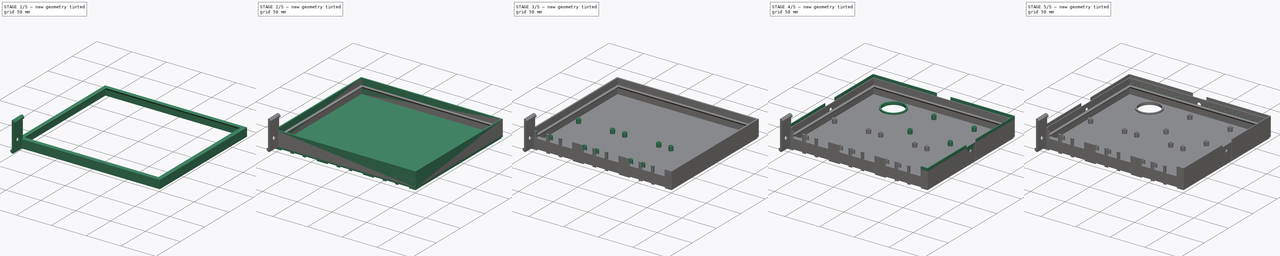
[diagram: build sequence overview — one tinted view per stage of 5, left to right]
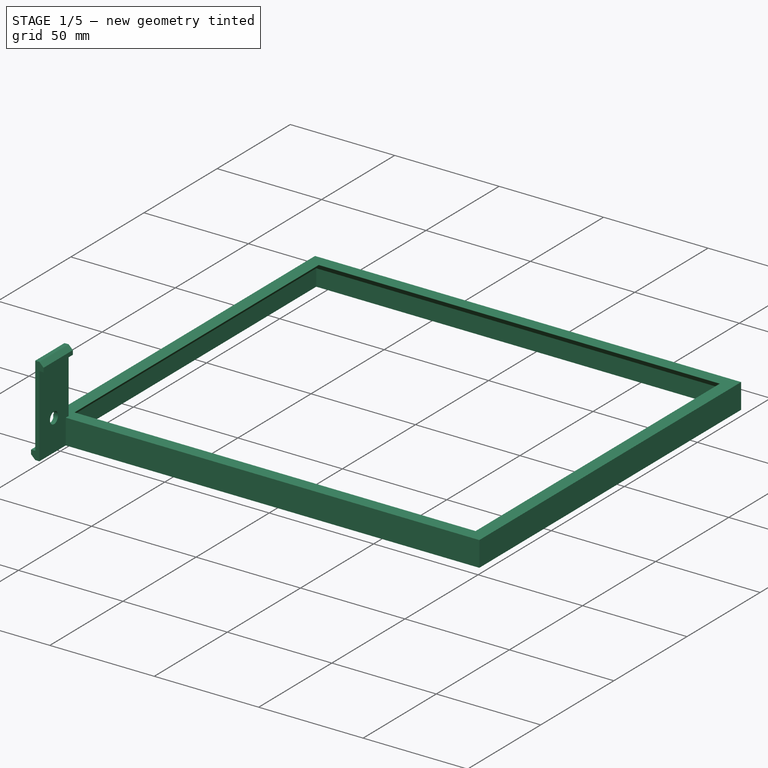
[diagram: stage 1 of 5 — iso view after this stage's code; geometry added in this stage tinted green]
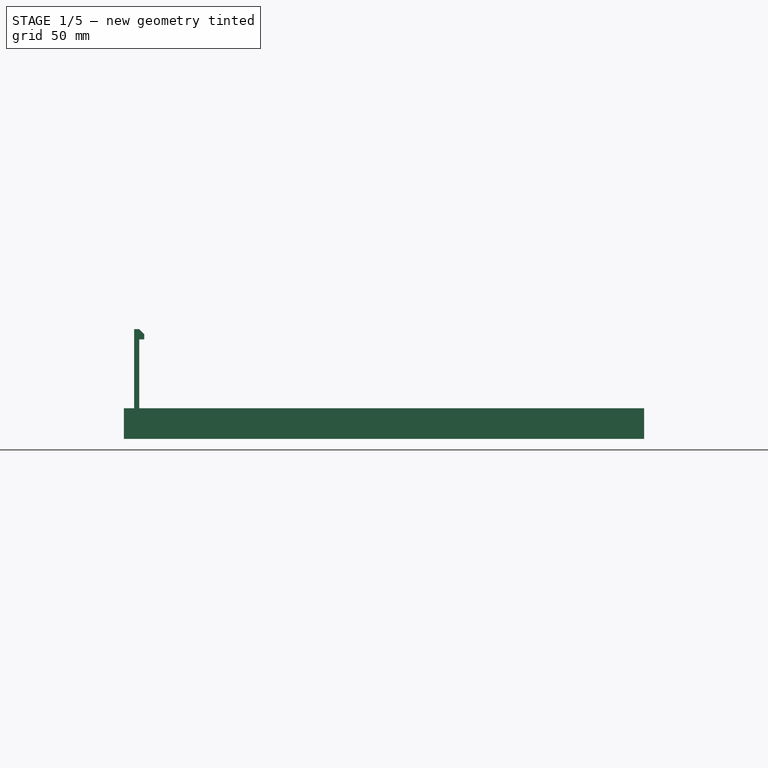
[diagram: stage 1 of 5 — front view after this stage's code; geometry added in this stage tinted green]
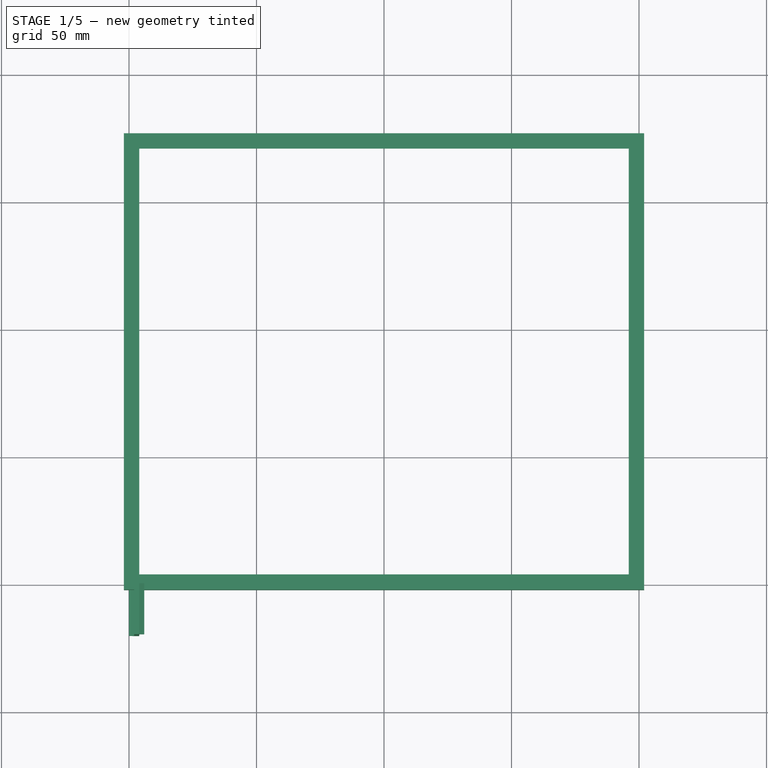
[diagram: stage 1 of 5 — top view after this stage's code; geometry added in this stage tinted green]
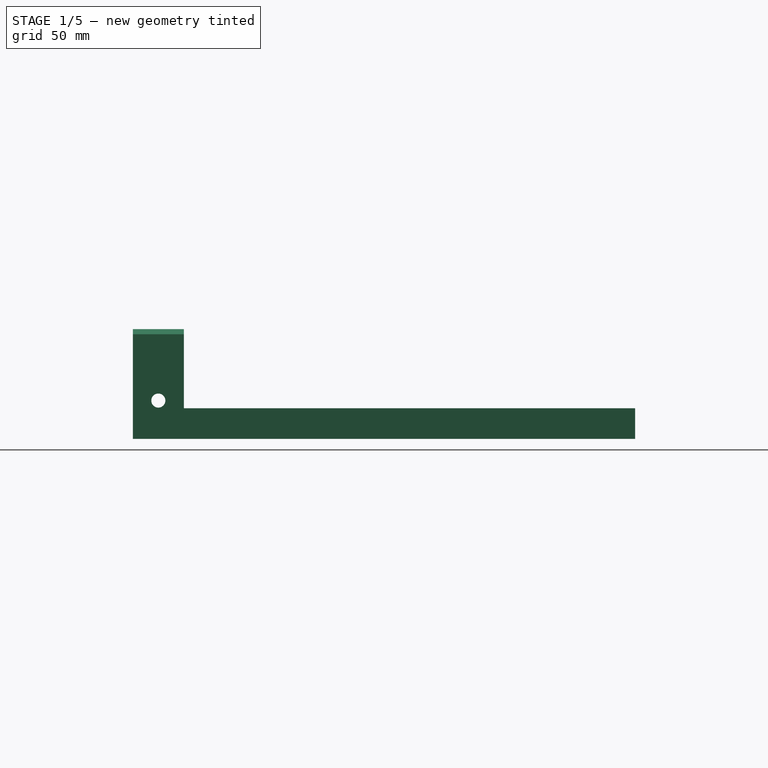
[diagram: stage 1 of 5 — right view after this stage's code; geometry added in this stage tinted green]
FCSTD DOCUMENT  (FreeCAD 2023.131R26244 +5365 (Git))
Label: Raspberry PI Cluster
License: All rights reserved
LicenseURL: http://en.wikipedia.org/wiki/All_rights_reserved
objects: Sketcher::SketchObject×20, PartDesign::Pad×10, PartDesign::Pocket×10, PartDesign::LinearPattern×5, PartDesign::Body×3, PartDesign::Chamfer×2, Spreadsheet::Sheet×1
note: 124 computed .brp shape members not serialized (recipe doc carries the construction recipe); baked Part::Feature solids carry a one-line shape summary decoded from their .brp

FEATURE [PartDesign::Body] Body  label="Bottom Half"
  AutoGroupSolids = false
  ClaimAllChildren = false
  ExportMode = 0
  Group = -> [Sketch,Pad,Sketch001,Pad001,Sketch002,Pocket,LinearPattern,Sketch003,Pad002,LinearPattern001,Chamfer,Sketch004,Pad003,Sketch005,Pocket001,Sketch006,Pad004,Sketch007,Pad005,Sketch008,Pocket002,Sketch009,Pocket003,Sketch010,Pocket004,Sketch011,Pocket005,LinearPattern002,Sketch012,Pocket006,LinearPattern003]
  InvalidShape = false
  Origin = -> Origin
  Tip = -> LinearPattern003
  TreeRank = 11
  ValidateShape = true
  _ExportChildren = -> [Pad,Pad001,Pocket,LinearPattern,Pad002,LinearPattern001,Chamfer,Pad003,Pocket001,Pad004,Pad005,Pocket002,Pocket003,Pocket004,Pocket005,LinearPattern002,Pocket006,LinearPattern003]
  _GroupVersion = 1
FEATURE [Sketcher::SketchObject] Sketch013  label="Top Walls Sketch"
  ArcFitTolerance = 1e-06
  AttachmentSupport = -> [XY_Plane001]
  ExternalBSplineMaxDegree = 5
  ExternalBSplineTolerance = 0.0001
  FullyConstrained = true
  InternalTolerance = 1e-06
  InvalidShape = false
  MakeInternals = false
  MapMode = 5
  Support = -> [XY_Plane001]
  TreeRank = 54
  ValidateShape = true
  expr: Constraints[17] = <<Parameters>>.Depth
  expr: Constraints[18] = <<Parameters>>.Width
  expr: Constraints[19] = <<Parameters>>.Width + 2 * <<Parameters>>.Thickness
  expr: Constraints[20] = <<Parameters>>.Depth + 2 * <<Parameters>>.Thickness
  expr: Constraints[21] = <<Parameters>>.Thickness
  expr: Constraints[22] = <<Parameters>>.Thickness
  sketch-geometry (8):
    g0: LineSegment StartX=-2 StartY=-2 StartZ=0 EndX=202 EndY=-2 EndZ=0
    g1: LineSegment StartX=202 StartY=-2 StartZ=0 EndX=202 EndY=177 EndZ=0
    g2: LineSegment StartX=202 StartY=177 StartZ=0 EndX=-2 EndY=177 EndZ=0
    g3: LineSegment StartX=-2 StartY=177 StartZ=0 EndX=-2 EndY=-2 EndZ=0
    g4: LineSegment StartX=0 StartY=0 StartZ=0 EndX=200 EndY=0 EndZ=0
    g5: LineSegment StartX=200 StartY=0 StartZ=0 EndX=200 EndY=175 EndZ=0
    g6: LineSegment StartX=200 StartY=175 StartZ=0 EndX=0 EndY=175 EndZ=0
    g7: LineSegment StartX=0 StartY=175 StartZ=0 EndX=0 EndY=0 EndZ=0
  constraints (23):
    c: Coincident(g0,g1)
    c: Coincident(g1,g2)
    c: Coincident(g2,g3)
    c: Coincident(g3,g0)
    c: Horizontal(g0)
    c: Horizontal(g2)
    c: Vertical(g1)
    c: Vertical(g3)
    c: Coincident(g4,g5)
    c: Coincident(g5,g6)
    c: Coincident(g6,g7)
    c: Coincident(g7,g4)
    c: Horizontal(g4)
    c: Horizontal(g6)
    c: Vertical(g5)
    c: Vertical(g7)
    c: Coincident(g4,g-1)
    c: DistanceY(g5,g5) = 175
    c: DistanceX(g6,g6) = 200
    c: DistanceX(g2,g2) = 204
    c: DistanceY(g1,g1) = 179
    c: DistanceY(g0,g4) = 2
    c: DistanceX(g0,g4) = 2
FEATURE [PartDesign::Pad] Pad006  label="Top Walls"
  AddSubType = 0
  AlongSketchNormal = false
  AutoTaperInnerAngle = true
  CheckUpToFaceLimits = true
  ClaimChildren = false
  Direction = (0,0,1)
  Fit = 0
  FitJoin = 0
  InnerFit = 0
  InnerFitJoin = 0
  InvalidShape = false
  Length = 12
  Length2 = 100
  Linearize = true
  NewSolid = false
  Profile = -> Sketch013
  Suppress = false
  TaperInnerAngle = 0
  TaperInnerAngleRev = 0
  TreeRank = 55
  Type = 0
  ValidateShape = true
  _ProfileBasedVersion = 1
  expr: Length = <<Parameters>>.Top_Height
FEATURE [Sketcher::SketchObject] Sketch014  label="Top Support Sketch"
  ArcFitTolerance = 1e-06
  AttachmentSupport = -> [Pad006]
  ExternalBSplineMaxDegree = 5
  ExternalBSplineTolerance = 0.0001
  FullyConstrained = true
  InternalTolerance = 1e-06
  InvalidShape = false
  MakeInternals = false
  MapMode = 5
  Placement = pos=(0,0,12) rot=(0,0,1;0rad)
  Support = -> [Pad006]
  TreeRank = 56
  ValidateShape = true
  expr: Constraints[10] = <<Parameters>>.Depth
  expr: Constraints[19] = <<Parameters>>.Thickness * 2
  expr: Constraints[20] = <<Parameters>>.Thickness * 2
  expr: Constraints[21] = <<Parameters>>.Thickness * 2
  expr: Constraints[22] = <<Parameters>>.Thickness * 2
  expr: Constraints[9] = <<Parameters>>.Width
  sketch-geometry (8):
    g0: LineSegment StartX=0 StartY=0 StartZ=0 EndX=200 EndY=0 EndZ=0
    g1: LineSegment StartX=200 StartY=0 StartZ=0 EndX=200 EndY=175 EndZ=0
    g2: LineSegment StartX=200 StartY=175 StartZ=0 EndX=0 EndY=175 EndZ=0
    g3: LineSegment StartX=0 StartY=175 StartZ=0 EndX=0 EndY=0 EndZ=0
    g4: LineSegment StartX=4 StartY=4 StartZ=0 EndX=196 EndY=4 EndZ=0
    g5: LineSegment StartX=196 StartY=4 StartZ=0 EndX=196 EndY=171 EndZ=0
    g6: LineSegment StartX=196 StartY=171 StartZ=0 EndX=4 EndY=171 EndZ=0
    g7: LineSegment StartX=4 StartY=171 StartZ=0 EndX=4 EndY=4 EndZ=0
  constraints (23):
    c: Coincident(g0,g1)
    c: Coincident(g1,g2)
    c: Coincident(g2,g3)
    c: Coincident(g3,g0)
    c: Horizontal(g0)
    c: Horizontal(g2)
    c: Vertical(g1)
    c: Vertical(g3)
    c: Coincident(g0,g-1)
    c: DistanceX(g2,g2) = 200
    c: DistanceY(g1,g1) = 175
    c: Coincident(g4,g5)
    c: Coincident(g5,g6)
    c: Coincident(g6,g7)
    c: Coincident(g7,g4)
    c: Horizontal(g4)
    c: Horizontal(g6)
    c: Vertical(g5)
    c: Vertical(g7)
    c: DistanceX(g0,g4) = 4
    c: DistanceY(g0,g4) = 4
    c: DistanceY(g5,g1) = 4
    c: DistanceX(g5,g1) = 4
FEATURE [PartDesign::Pad] Pad007  label="Top Support"
  AddSubType = 0
  AlongSketchNormal = false
  AutoTaperInnerAngle = true
  BaseFeature = -> Pad006
  CheckUpToFaceLimits = true
  ClaimChildren = false
  Direction = (0,0,1)
  Fit = 0
  FitJoin = 0
  InnerFit = 0
  InnerFitJoin = 0
  InvalidShape = false
  Length = 4
  Length2 = 100
  Linearize = true
  NewSolid = false
  Profile = -> Sketch014
  Reversed = true
  Suppress = false
  TaperInnerAngle = 0
  TaperInnerAngleRev = 0
  TreeRank = 57
  Type = 0
  ValidateShape = true
  _ProfileBasedVersion = 1
  expr: Length = <<Parameters>>.Thickness * 2
FEATURE [PartDesign::Chamfer] Chamfer001  label="Top Support Chamfer"
  AddSubType = 0
  Angle = 45
  Base = -> Pad007 [Edge35,Edge36,Edge33,Edge34]
  BaseFeature = -> Pad007
  ChamferType = 0
  FlipDirection = false
  InvalidShape = false
  NewSolid = false
  Size = 3.96
  Size2 = 1
  SupportTransform = false
  Suppress = false
  TreeRank = 58
  ValidateShape = true
  expr: Size = <<Parameters>>.Thickness * 2 * 0.99
FEATURE [PartDesign::Body] Body001  label="Top Half"
  AutoGroupSolids = false
  ClaimAllChildren = false
  ExportMode = 0
  Group = -> [Sketch013,Pad006,Sketch014,Pad007,Chamfer001,Sketch015,Pad008,Sketch016,Pocket007,Sketch017,Pocket008,LinearPattern004]
  InvalidShape = false
  Origin = -> Origin001
  Tip = -> LinearPattern004
  TreeRank = 53
  ValidateShape = true
  _ExportChildren = -> [Pad006,Pad007,Chamfer001,Pad008,Pocket007,Pocket008,LinearPattern004]
  _GroupVersion = 1
FEATURE [Sketcher::SketchObject] Sketch018
  ArcFitTolerance = 1e-06
  AttachmentSupport = -> [XZ_Plane002]
  ExternalBSplineMaxDegree = 5
  ExternalBSplineTolerance = 0.0001
  FullyConstrained = true
  InternalTolerance = 1e-06
  InvalidShape = false
  MakeInternals = false
  MapMode = 5
  Placement = pos=(0,0,0) rot=(1,0,0;1.5708rad)
  Support = -> [XZ_Plane002]
  TreeRank = 76
  ValidateShape = true
  expr: Constraints[11] = <<Parameters>>.Thickness * <<Parameters>>.Locking_Thickness_Multiplier / 2
  expr: Constraints[12] = <<Parameters>>.Thickness * <<Parameters>>.Locking_Thickness_Multiplier / 2
  expr: Constraints[13] = <<Parameters>>.Thickness * <<Parameters>>.Locking_Thickness_Multiplier / 2
  expr: Constraints[14] = <<Parameters>>.Thickness * <<Parameters>>.Locking_Thickness_Multiplier
  expr: Constraints[29] = <<Parameters>>.Locking_Height
  sketch-geometry (10):
    g0: LineSegment StartX=0 StartY=4 StartZ=0 EndX=0 EndY=2 EndZ=0
    g1: LineSegment StartX=0 StartY=2 StartZ=0 EndX=2 EndY=0 EndZ=0
    g2: LineSegment StartX=2 StartY=0 StartZ=0 EndX=4 EndY=0 EndZ=0
    g3: LineSegment StartX=0 StartY=4 StartZ=0 EndX=2 EndY=4 EndZ=0
    g4: LineSegment StartX=4 StartY=0 StartZ=0 EndX=4 EndY=39 EndZ=0
    g5: LineSegment StartX=2 StartY=4 StartZ=0 EndX=2 EndY=43 EndZ=0
    g6: LineSegment StartX=2 StartY=43 StartZ=0 EndX=4 EndY=43 EndZ=0
    g7: LineSegment StartX=4 StartY=39 StartZ=0 EndX=6 EndY=39 EndZ=0
    g8: LineSegment StartX=6 StartY=39 StartZ=0 EndX=6 EndY=41 EndZ=0
    g9: LineSegment StartX=6 StartY=41 StartZ=0 EndX=4 EndY=43 EndZ=0
  constraints (30):
    c: Vertical(g0)
    c: Coincident(g1,g0)
    c: Coincident(g2,g1)
    c: Horizontal(g2)
    c: Coincident(g3,g0)
    c: Horizontal(g3)
    c: Coincident(g4,g2)
    c: Vertical(g4)
    c: Coincident(g5,g3)
    c: Vertical(g5)
    c: Angle(g-2,g1) = 0.785398
    c: DistanceX(g2,g2) = 2
    c: DistanceX(g3,g3) = 2
    c: DistanceY(g0,g0) = 2
    c: DistanceY(g1,g3) = 4
    c: Coincident(g6,g5)
    c: Horizontal(g6)
    c: Coincident(g7,g4)
    c: Horizontal(g7)
    c: Equal(g2,g6)
    c: Equal(g3,g7)
    c: Coincident(g8,g7)
    c: Vertical(g8)
    c: Coincident(g9,g8)
    c: Coincident(g9,g6)
    c: Equal(g1,g9)
    c: Equal(g0,g8)
    c: PointOnObject(g0,g-2)
    c: PointOnObject(g2,g-1)
    c: DistanceY(g0,g7) = 35
FEATURE [PartDesign::Pad] Pad009
  AddSubType = 0
  AlongSketchNormal = false
  AutoTaperInnerAngle = true
  CheckUpToFaceLimits = true
  ClaimChildren = false
  Direction = (0,-1,2e-16)
  Fit = 0
  FitJoin = 0
  InnerFit = 0
  InnerFitJoin = 0
  InvalidShape = false
  Length = 20
  Length2 = 100
  Linearize = true
  NewSolid = false
  Profile = -> Sketch018
  Suppress = false
  TaperInnerAngle = 0
  TaperInnerAngleRev = 0
  TreeRank = 77
  Type = 0
  ValidateShape = true
  _ProfileBasedVersion = 1
  expr: Length = <<Parameters>>.Locking_Width
FEATURE [Sketcher::SketchObject] Sketch019
  ArcFitTolerance = 1e-06
  AttachmentSupport = -> [Pad009]
  ExternalBSplineMaxDegree = 5
  ExternalBSplineTolerance = 0.0001
  FullyConstrained = true
  InternalTolerance = 1e-06
  InvalidShape = false
  MakeInternals = false
  MapMode = 5
  Placement = pos=(4,0,0) rot=(0.57735,0.57735,0.57735;2.0944rad)
  Support = -> [Pad009]
  TreeRank = 78
  ValidateShape = true
  expr: Constraints[0] = <<Parameters>>.Locking_Width / 2
  expr: Constraints[1] = <<Parameters>>.Locking_Hole_Offset
  expr: Constraints[2] = <<Parameters>>.Locking_Hole_Diameter
  sketch-geometry (1):
    g0: Circle CenterX=-10 CenterY=15 CenterZ=0 NormalX=0 NormalY=0 NormalZ=1 AngleXU=0 Radius=2.75
  constraints (3):
    c: DistanceX(g0,g-1) = 10
    c: DistanceY(g-1,g0) = 15
    c: Diameter(g0) = 5.5
FEATURE [PartDesign::Pocket] Pocket009
  AddSubType = 1
  AutoTaperInnerAngle = true
  BaseFeature = -> Pad009
  CheckUpToFaceLimits = true
  ClaimChildren = false
  Fit = 0
  FitJoin = 0
  InnerFit = 0
  InnerFitJoin = 0
  InvalidShape = false
  Length = 2
  Length2 = 100
  Linearize = true
  NewSolid = false
  Profile = -> Sketch019
  Suppress = false
  TaperInnerAngle = 0
  TaperInnerAngleRev = 0
  TreeRank = 79
  Type = 0
  ValidateShape = true
  _ProfileBasedVersion = 1
  _Version = 1
  expr: Length = <<Parameters>>.Thickness
FEATURE [PartDesign::Body] Body002  label="Lock"
  AutoGroupSolids = false
  ClaimAllChildren = false
  ExportMode = 0
  Group = -> [Sketch018,Pad009,Sketch019,Pocket009]
  InvalidShape = false
  Origin = -> Origin002
  Tip = -> Pocket009
  TreeRank = 75
  ValidateShape = true
  _ExportChildren = -> [Pad009,Pocket009]
  _GroupVersion = 1
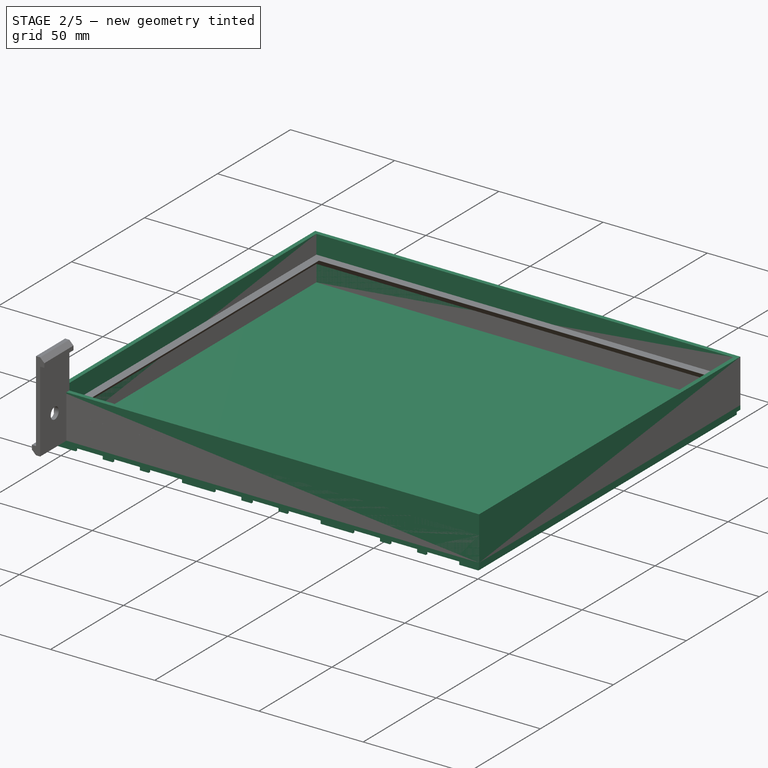
[diagram: stage 2 of 5 — iso view after this stage's code; geometry added in this stage tinted green]
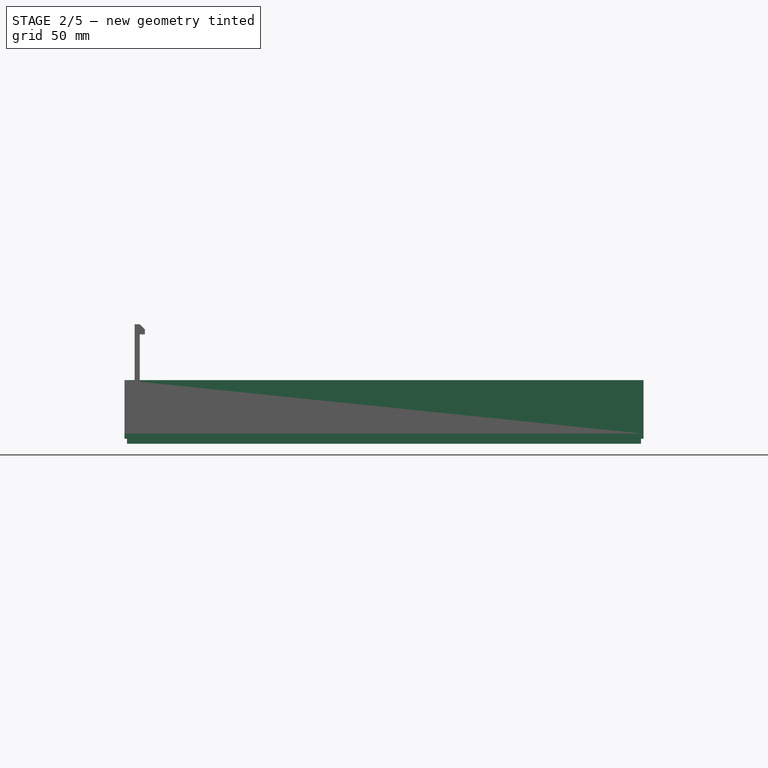
[diagram: stage 2 of 5 — front view after this stage's code; geometry added in this stage tinted green]
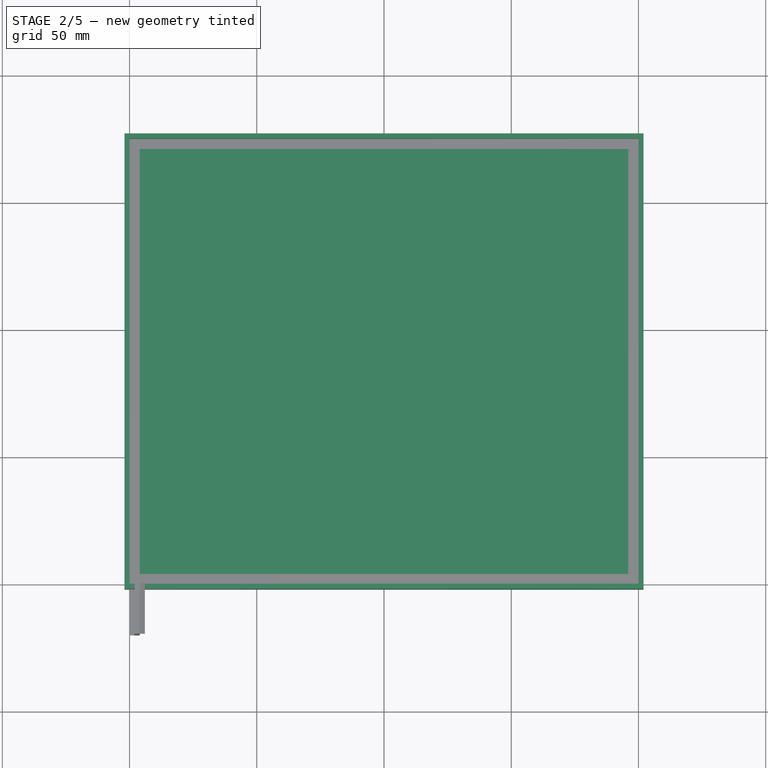
[diagram: stage 2 of 5 — top view after this stage's code; geometry added in this stage tinted green]
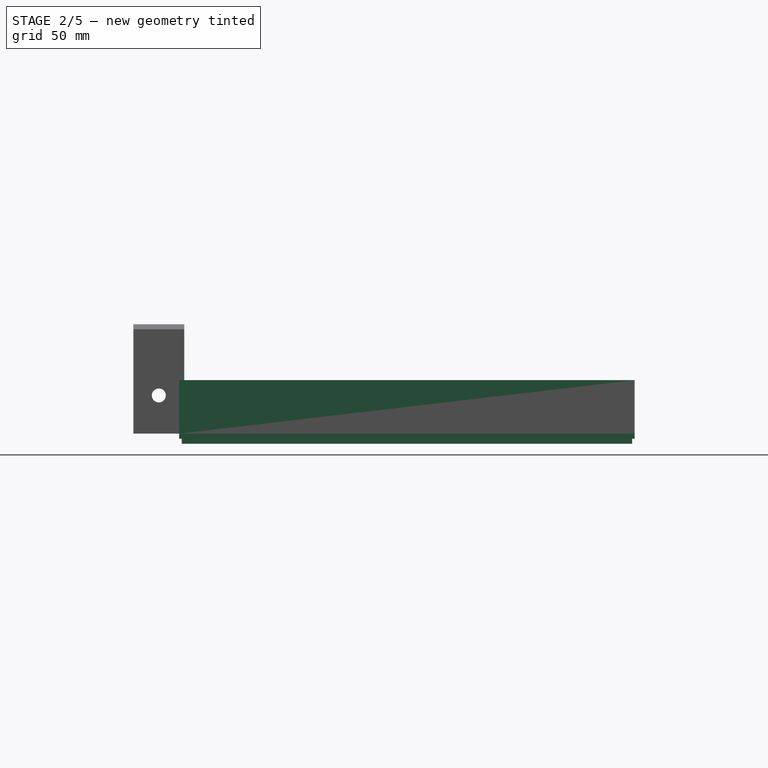
[diagram: stage 2 of 5 — right view after this stage's code; geometry added in this stage tinted green]
FEATURE [Spreadsheet::Sheet] Spreadsheet  label="Parameters"
  PythonMode = false
  ShowCells = 0
  TreeRank = 1
  cells = A1=General; A2=Wall Thickness; B2(Thickness)=2; A3=Width; B3(Width)=200; A4=Depth; B4(Depth)=175; A5=PCB Thickness; B5(PCB_Thickness)=1.5; A6=Standoff Mount Height; B6(Mount_Height)=6; A7=Standoff Mount Diameter; B7(Mount_Diameter)=6; A8=Standoff Hole Diameter; B8(Mount_Hole_Diameter)=3.04; A9=Space Between PIs; B9(Space)=10; A10=Left and Right Margin; B10(Side_Margin)==(Width - 3 * PI_Width - 2 * Space) / 2; A11=Front Margin; B11(Front_Margin)=1; A12=Air Hole Diameter; B12(Air_Hole_Diameter)=3; A14=Component Size; B14=Width; C14=Height; D14=Into Top; A15=Raspberry PI with Hat; B15(PI_Width)=56.5; C15(PI_Height)=20; A16=RJ45 Component; B16(RJ45_Width)=16; C16(RJ45_Height)=13.5; D16(RJ45_Overhang)==Mount_Height + PCB_Thickness + RJ45_Y + RJ45_Height - Bottom_Height; A17=USB2 Component; B17(USB2_Width)=13; C17(USB2_Height)=14; D17(USB2_Overhang)==Mount_Height + PCB_Thickness + USB2_Y + USB2_Height - Bottom_Height; A18=USB3 Component; B18(USB3_Width)=13; C18(USB3_Height)=14.5; D18(USB3_Overhang)==Mount_Height + PCB_Thickness + USB3_Y + USB3_Height - Bottom_Height; A19=Component Spacing; B19=Space; C19=Vert Offset; A20=Side to USB2 Spacing; B20(Side_to_USB2_Space)=2.5; C20(USB2_Y)==17 - PCB_Thickness - USB2_Height; A21=USB2 to USB3 Spacing; B21(USB2_to_USB3_Space)=4.8; C21(USB3_Y)==17 - PCB_Thickness - USB3_Height; A22=USB3 to RJ45 Spacing; B22(USB3_to_RJ45_Space)=4.2; C22(RJ45_Y)=0; A24=Hole Placement; B24=X; C24=Y; A25=Front Right; B25(FR_X)=52.5; C25(FR_Y)=23.5; A26=Front Left; B26(FL_X)=3.5; C26(FL_Y)=23.5; A27=Back Right; B27(BR_X)=52.5; C27(BR_Y)=81.5; A28=Back Left; B28(BL_X)=3.5; C28(BL_Y)=81.5; B29=Width; C29=Depth; A30=Hole Distance; B30(Mounting_Hole_Width)==FR_X - FL_X; C30(Mounting_Hole_Depth)==BR_Y - FR_Y; A32=Bottom; A33=Height; B33(Bottom_Height)==PCB_Thickness + Mount_Height + RJ45_Height; A34=Pass-through Hole Diameter; B34(Passthrough_Diameter)=30; A35=Pass-through Offset; B35(Passthrough_X)=42.88; C35(Passthrough_Y)=155; A37=Top; A38=Height; B38(Top_Height)=12; A40=Locking Leaver; A41=Thickness Multiplier; B41(Locking_Thickness_Multiplier)=2; A42=Lever Width; B42(Locking_Width)=20; A43=Lever Height; B43(Locking_Height)==Top_Height + Bottom_Height + Thickness; A44=Screw Hole Offset; B44(Locking_Hole_Offset)=15; A45=Screw Hole Diameter; B45(Locking_Hole_Diameter)=5.5
FEATURE [Sketcher::SketchObject] Sketch  label="Sides Sketch"
  ArcFitTolerance = 1e-06
  AttachmentSupport = -> [XY_Plane]
  ExternalBSplineMaxDegree = 5
  ExternalBSplineTolerance = 0.0001
  FullyConstrained = true
  InternalTolerance = 1e-06
  InvalidShape = false
  MakeInternals = false
  MapMode = 5
  Support = -> [XY_Plane]
  TreeRank = 12
  ValidateShape = true
  expr: Constraints[17] = <<Parameters>>.Width + 2 * <<Parameters>>.Thickness
  expr: Constraints[18] = <<Parameters>>.Depth + 2 * <<Parameters>>.Thickness
  expr: Constraints[19] = <<Parameters>>.Thickness
  expr: Constraints[20] = <<Parameters>>.Thickness
  expr: Constraints[21] = <<Parameters>>.Width
  expr: Constraints[22] = <<Parameters>>.Depth
  sketch-geometry (8):
    g0: LineSegment StartX=0 StartY=0 StartZ=0 EndX=200 EndY=0 EndZ=0
    g1: LineSegment StartX=200 StartY=0 StartZ=0 EndX=200 EndY=175 EndZ=0
    g2: LineSegment StartX=200 StartY=175 StartZ=0 EndX=0 EndY=175 EndZ=0
    g3: LineSegment StartX=0 StartY=175 StartZ=0 EndX=0 EndY=0 EndZ=0
    g4: LineSegment StartX=-2 StartY=-2 StartZ=0 EndX=202 EndY=-2 EndZ=0
    g5: LineSegment StartX=202 StartY=-2 StartZ=0 EndX=202 EndY=177 EndZ=0
    g6: LineSegment StartX=202 StartY=177 StartZ=0 EndX=-2 EndY=177 EndZ=0
    g7: LineSegment StartX=-2 StartY=177 StartZ=0 EndX=-2 EndY=-2 EndZ=0
  constraints (23):
    c: Coincident(g0,g1)
    c: Coincident(g1,g2)
    c: Coincident(g2,g3)
    c: Coincident(g3,g0)
    c: Horizontal(g0)
    c: Horizontal(g2)
    c: Vertical(g1)
    c: Vertical(g3)
    c: Coincident(g0,g-1)
    c: Coincident(g4,g5)
    c: Coincident(g5,g6)
    c: Coincident(g6,g7)
    c: Coincident(g7,g4)
    c: Horizontal(g4)
    c: Horizontal(g6)
    c: Vertical(g5)
    c: Vertical(g7)
    c: DistanceX(g4,g4) = 204
    c: DistanceY(g7,g7) = 179
    c: DistanceY(g4,g0) = 2
    c: DistanceX(g4,g0) = 2
    c: DistanceX(g0,g0) = 200
    c: DistanceY(g3,g3) = 175
FEATURE [PartDesign::Pad] Pad  label="Sides"
  AddSubType = 0
  AlongSketchNormal = false
  AutoTaperInnerAngle = true
  CheckUpToFaceLimits = true
  ClaimChildren = false
  Direction = (0,0,1)
  Fit = 0
  FitJoin = 0
  InnerFit = 0
  InnerFitJoin = 0
  InvalidShape = false
  Length = 21
  Length2 = 100
  Linearize = true
  NewSolid = false
  Profile = -> Sketch
  Suppress = false
  TaperInnerAngle = 0
  TaperInnerAngleRev = 0
  TreeRank = 13
  Type = 0
  ValidateShape = true
  _ProfileBasedVersion = 1
  expr: Length = <<Parameters>>.Bottom_Height
FEATURE [Sketcher::SketchObject] Sketch001  label="Bottom Sketch"
  ArcFitTolerance = 1e-06
  AttachmentSupport = -> [Pad]
  ExternalBSplineMaxDegree = 5
  ExternalBSplineTolerance = 0.0001
  FullyConstrained = true
  InternalTolerance = 1e-06
  InvalidShape = false
  MakeInternals = false
  MapMode = 5
  Placement = pos=(0,0,0) rot=(1,0,0;3.14159rad)
  Support = -> [Pad]
  TreeRank = 14
  ValidateShape = true
  expr: Constraints[10] = <<Parameters>>.Depth + 2 * <<Parameters>>.Thickness
  expr: Constraints[11] = <<Parameters>>.Width + 2 * <<Parameters>>.Thickness
  expr: Constraints[8] = <<Parameters>>.Thickness
  expr: Constraints[9] = <<Parameters>>.Thickness
  sketch-geometry (4):
    g0: LineSegment StartX=-2 StartY=2 StartZ=0 EndX=202 EndY=2 EndZ=0
    g1: LineSegment StartX=202 StartY=2 StartZ=0 EndX=202 EndY=-177 EndZ=0
    g2: LineSegment StartX=202 StartY=-177 StartZ=0 EndX=-2 EndY=-177 EndZ=0
    g3: LineSegment StartX=-2 StartY=-177 StartZ=0 EndX=-2 EndY=2 EndZ=0
  constraints (12):
    c: Coincident(g0,g1)
    c: Coincident(g1,g2)
    c: Coincident(g2,g3)
    c: Coincident(g3,g0)
    c: Horizontal(g0)
    c: Horizontal(g2)
    c: Vertical(g1)
    c: Vertical(g3)
    c: DistanceX(g0,g-1) = 2
    c: DistanceY(g-1,g0) = 2
    c: DistanceY(g3,g3) = 179
    c: DistanceX(g0,g0) = 204
FEATURE [PartDesign::Pad] Pad001  label="Bottom"
  AddSubType = 0
  AlongSketchNormal = false
  AutoTaperInnerAngle = true
  BaseFeature = -> Pad
  CheckUpToFaceLimits = true
  ClaimChildren = false
  Direction = (0,0,-1)
  Fit = 0
  FitJoin = 0
  InnerFit = 0
  InnerFitJoin = 0
  InvalidShape = false
  Length = 2
  Length2 = 100
  Linearize = true
  NewSolid = false
  Profile = -> Sketch001
  Suppress = false
  TaperInnerAngle = 0
  TaperInnerAngleRev = 0
  TreeRank = 15
  Type = 0
  ValidateShape = true
  _ProfileBasedVersion = 1
  expr: Length = <<Parameters>>.Thickness
FEATURE [Sketcher::SketchObject] Sketch015  label="Top Wall Recess Sketch"
  ArcFitTolerance = 1e-06
  AttachmentSupport = -> [Chamfer001]
  ExternalBSplineMaxDegree = 5
  ExternalBSplineTolerance = 0.0001
  FullyConstrained = true
  InternalTolerance = 1e-06
  InvalidShape = false
  MakeInternals = false
  MapMode = 5
  Placement = pos=(0,0,0) rot=(1,0,0;3.14159rad)
  Support = -> [Chamfer001]
  TreeRank = 59
  ValidateShape = true
  expr: Constraints[17] = <<Parameters>>.Width + <<Parameters>>.Thickness
  expr: Constraints[18] = <<Parameters>>.Depth + <<Parameters>>.Thickness
  expr: Constraints[19] = <<Parameters>>.Thickness / 2
  expr: Constraints[20] = <<Parameters>>.Thickness / 2
  expr: Constraints[21] = <<Parameters>>.Thickness / 2
  expr: Constraints[22] = <<Parameters>>.Thickness / 2
  sketch-geometry (8):
    g0: LineSegment StartX=-1 StartY=1 StartZ=0 EndX=201 EndY=1 EndZ=0
    g1: LineSegment StartX=201 StartY=1 StartZ=0 EndX=201 EndY=-176 EndZ=0
    g2: LineSegment StartX=201 StartY=-176 StartZ=0 EndX=-1 EndY=-176 EndZ=0
    g3: LineSegment StartX=-1 StartY=-176 StartZ=0 EndX=-1 EndY=1 EndZ=0
    g4: LineSegment StartX=0 StartY=0 StartZ=0 EndX=200 EndY=0 EndZ=0
    g5: LineSegment StartX=200 StartY=0 StartZ=0 EndX=200 EndY=-175 EndZ=0
    g6: LineSegment StartX=200 StartY=-175 StartZ=0 EndX=0 EndY=-175 EndZ=0
    g7: LineSegment StartX=0 StartY=-175 StartZ=0 EndX=0 EndY=0 EndZ=0
  constraints (23):
    c: Coincident(g0,g1)
    c: Coincident(g1,g2)
    c: Coincident(g2,g3)
    c: Coincident(g3,g0)
    c: Horizontal(g0)
    c: Horizontal(g2)
    c: Vertical(g1)
    c: Vertical(g3)
    c: Coincident(g4,g5)
    c: Coincident(g5,g6)
    c: Coincident(g6,g7)
    c: Coincident(g7,g4)
    c: Horizontal(g4)
    c: Horizontal(g6)
    c: Vertical(g5)
    c: Vertical(g7)
    c: Coincident(g4,g-1)
    c: DistanceX(g0,g0) = 202
    c: DistanceY(g3,g3) = 177
    c: DistanceY(g4,g0) = 1
    c: DistanceX(g0,g4) = 1
    c: DistanceX(g5,g1) = 1
    c: DistanceY(g1,g5) = 1
FEATURE [PartDesign::Pad] Pad008  label="Top Wall Recess"
  AddSubType = 0
  AlongSketchNormal = false
  AutoTaperInnerAngle = true
  BaseFeature = -> Chamfer001
  CheckUpToFaceLimits = true
  ClaimChildren = false
  Direction = (0,0,-1)
  Fit = 0
  FitJoin = 0
  InnerFit = 0
  InnerFitJoin = 0
  InvalidShape = false
  Length = 4
  Length2 = 100
  Linearize = true
  NewSolid = false
  Profile = -> Sketch015
  Suppress = false
  TaperInnerAngle = 0
  TaperInnerAngleRev = 0
  TreeRank = 60
  Type = 0
  ValidateShape = true
  _ProfileBasedVersion = 1
  expr: Length = <<Parameters>>.Thickness * 2
FEATURE [Sketcher::SketchObject] Sketch016  label="Top Locking Recess Sketch"
  ArcFitTolerance = 1e-06
  AttachmentSupport = -> [Pad008]
  ExternalBSplineMaxDegree = 5
  ExternalBSplineTolerance = 0.0001
  FullyConstrained = true
  InternalTolerance = 1e-06
  InvalidShape = false
  MakeInternals = false
  MapMode = 5
  Placement = pos=(0,0,12) rot=(0,0,1;0rad)
  Support = -> [Pad008]
  TreeRank = 61
  ValidateShape = true
  expr: Constraints[27] = <<Parameters>>.Locking_Width
  expr: Constraints[30] = <<Parameters>>.Thickness / 2
  expr: Constraints[33] = <<Parameters>>.Depth / 2
  expr: Constraints[34] = <<Parameters>>.Depth / 2
  expr: Constraints[35] = <<Parameters>>.Width / 2
  expr: Constraints[36] = <<Parameters>>.Thickness / 2
  expr: Constraints[37] = <<Parameters>>.Width + <<Parameters>>.Thickness / 2
  expr: Constraints[38] = <<Parameters>>.Depth + <<Parameters>>.Thickness / 2
  sketch-geometry (15):
    g0: LineSegment StartX=-2 StartY=77.5 StartZ=0 EndX=-2 EndY=97.5 EndZ=0
    g1: LineSegment StartX=-2 StartY=97.5 StartZ=0 EndX=-1 EndY=97.5 EndZ=0
    g2: LineSegment StartX=-1 StartY=97.5 StartZ=0 EndX=-1 EndY=77.5 EndZ=0
    g3: LineSegment StartX=-1 StartY=77.5 StartZ=0 EndX=-2 EndY=77.5 EndZ=0
    g4: GeomPoint [constr] X=-1.5 Y=87.5 Z=0
    g5: LineSegment StartX=201 StartY=77.5 StartZ=0 EndX=201 EndY=97.5 EndZ=0
    g6: LineSegment StartX=201 StartY=97.5 StartZ=0 EndX=202 EndY=97.5 EndZ=0
    g7: LineSegment StartX=202 StartY=97.5 StartZ=0 EndX=202 EndY=77.5 EndZ=0
    g8: LineSegment StartX=202 StartY=77.5 StartZ=0 EndX=201 EndY=77.5 EndZ=0
    g9: GeomPoint [constr] X=201.5 Y=87.5 Z=0
    g10: LineSegment StartX=90 StartY=176 StartZ=0 EndX=90 EndY=177 EndZ=0
    g11: LineSegment StartX=90 StartY=177 StartZ=0 EndX=110 EndY=177 EndZ=0
    g12: LineSegment StartX=110 StartY=177 StartZ=0 EndX=110 EndY=176 EndZ=0
    g13: LineSegment StartX=110 StartY=176 StartZ=0 EndX=90 EndY=176 EndZ=0
    g14: GeomPoint [constr] X=100 Y=176.5 Z=0
  constraints (39):
    c: Coincident(g0,g1)
    c: Coincident(g1,g2)
    c: Coincident(g2,g3)
    c: Coincident(g3,g0)
    c: Horizontal(g1)
    c: Horizontal(g3)
    c: Vertical(g0)
    c: Vertical(g2)
    c: Symmetric(g1,g0,g4)
    c: Coincident(g5,g6)
    c: Coincident(g6,g7)
    c: Coincident(g7,g8)
    c: Coincident(g8,g5)
    c: Horizontal(g6)
    c: Horizontal(g8)
    c: Vertical(g5)
    c: Vertical(g7)
    c: Symmetric(g6,g5,g9)
    c: Coincident(g10,g11)
    c: Coincident(g11,g12)
    c: Coincident(g12,g13)
    c: Coincident(g13,g10)
    c: Horizontal(g11)
    c: Horizontal(g13)
    c: Vertical(g10)
    c: Vertical(g12)
    c: Symmetric(g11,g10,g14)
    c: DistanceX(g11,g11) = 20
    c: Equal(g11,g7)
    c: Equal(g11,g0)
    c: DistanceY(g12,g12) = 1
    c: Equal(g12,g6)
    c: Equal(g12,g1)
    c: DistanceY(g-1,g4) = 87.5
    c: DistanceY(g-1,g9) = 87.5
    c: DistanceX(g-1,g14) = 100
    c: DistanceX(g2,g-1) = 1
    c: DistanceX(g-1,g5) = 201
    c: DistanceY(g-1,g10) = 176
FEATURE [PartDesign::Pocket] Pocket007  label="Top Locking Recess"
  AddSubType = 1
  AutoTaperInnerAngle = true
  BaseFeature = -> Pad008
  CheckUpToFaceLimits = true
  ClaimChildren = false
  Fit = 0
  FitJoin = 0
  InnerFit = 0
  InnerFitJoin = 0
  InvalidShape = false
  Length = 12
  Length2 = 100
  Linearize = true
  NewSolid = false
  Profile = -> Sketch016
  Suppress = false
  TaperInnerAngle = 0
  TaperInnerAngleRev = 0
  TreeRank = 62
  Type = 0
  ValidateShape = true
  _ProfileBasedVersion = 1
  _Version = 1
  expr: Length = <<Parameters>>.Top_Height
FEATURE [Sketcher::SketchObject] Sketch017  label="Top Front Holes Sketch"
  ArcFitTolerance = 1e-06
  AttachmentSupport = -> [Pocket007]
  ExternalBSplineMaxDegree = 5
  ExternalBSplineTolerance = 0.0001
  FullyConstrained = true
  InternalTolerance = 1e-06
  InvalidShape = false
  MakeInternals = false
  MapMode = 5
  Placement = pos=(0,-2,0) rot=(1,0,0;1.5708rad)
  Support = -> [Pocket007]
  TreeRank = 63
  ValidateShape = true
  expr: Constraints[24] = <<Parameters>>.RJ45_Width
  expr: Constraints[25] = <<Parameters>>.USB3_Width
  expr: Constraints[26] = <<Parameters>>.USB2_Width
  expr: Constraints[27] = <<Parameters>>.USB2_to_USB3_Space
  expr: Constraints[28] = <<Parameters>>.USB3_to_RJ45_Space
  expr: Constraints[29] = <<Parameters>>.Side_Margin + <<Parameters>>.Side_to_USB2_Space
  expr: Constraints[30] = <<Parameters>>.Thickness * 2 + <<Parameters>>.RJ45_Overhang
  expr: Constraints[31] = <<Parameters>>.Thickness * 2
  expr: Constraints[32] = <<Parameters>>.Thickness * 2
  expr: Constraints[33] = <<Parameters>>.Thickness * 2
  expr: Constraints[34] = <<Parameters>>.Thickness * 2 + <<Parameters>>.USB3_Overhang
  expr: Constraints[35] = <<Parameters>>.Thickness * 2 + <<Parameters>>.USB2_Overhang
  sketch-geometry (12):
    g0: LineSegment StartX=7.75 StartY=2 StartZ=0 EndX=20.75 EndY=2 EndZ=0
    g1: LineSegment StartX=20.75 StartY=2 StartZ=0 EndX=20.75 EndY=-4 EndZ=0
    g2: LineSegment StartX=20.75 StartY=-4 StartZ=0 EndX=7.75 EndY=-4 EndZ=0
    g3: LineSegment StartX=7.75 StartY=-4 StartZ=0 EndX=7.75 EndY=2 EndZ=0
    g4: LineSegment StartX=25.55 StartY=2 StartZ=0 EndX=38.55 EndY=2 EndZ=0
    g5: LineSegment StartX=38.55 StartY=2 StartZ=0 EndX=38.55 EndY=-4 EndZ=0
    g6: LineSegment StartX=38.55 StartY=-4 StartZ=0 EndX=25.55 EndY=-4 EndZ=0
    g7: LineSegment StartX=25.55 StartY=-4 StartZ=0 EndX=25.55 EndY=2 EndZ=0
    g8: LineSegment StartX=42.75 StartY=0 StartZ=0 EndX=58.75 EndY=0 EndZ=0
    g9: LineSegment StartX=58.75 StartY=0 StartZ=0 EndX=58.75 EndY=-4 EndZ=0
    g10: LineSegment StartX=58.75 StartY=-4 StartZ=0 EndX=42.75 EndY=-4 EndZ=0
    g11: LineSegment StartX=42.75 StartY=-4 StartZ=0 EndX=42.75 EndY=0 EndZ=0
  constraints (36):
    c: Coincident(g0,g1)
    c: Coincident(g1,g2)
    c: Coincident(g2,g3)
    c: Coincident(g3,g0)
    c: Horizontal(g0)
    c: Horizontal(g2)
    c: Vertical(g1)
    c: Vertical(g3)
    c: Coincident(g4,g5)
    c: Coincident(g5,g6)
    c: Coincident(g6,g7)
    c: Coincident(g7,g4)
    c: Horizontal(g4)
    c: Horizontal(g6)
    c: Vertical(g5)
    c: Vertical(g7)
    c: Coincident(g8,g9)
    c: Coincident(g9,g10)
    c: Coincident(g10,g11)
    c: Coincident(g11,g8)
    c: Horizontal(g8)
    c: Horizontal(g10)
    c: Vertical(g9)
    c: Vertical(g11)
    c: DistanceX(g8,g8) = 16
    c: DistanceX(g4,g4) = 13
    c: DistanceX(g0,g0) = 13
    c: DistanceX(g1,g6) = 4.8
    c: DistanceX(g5,g10) = 4.2
    c: DistanceX(g-1,g2) = 7.75
    c: DistanceY(g11,g11) = 4
    c: DistanceY(g10,g-1) = 4
    c: DistanceY(g2,g-1) = 4
    c: DistanceY(g6,g-1) = 4
    c: DistanceY(g7,g7) = 6
    c: DistanceY(g1,g1) = 6
FEATURE [PartDesign::Pocket] Pocket008  label="Top Front Holes"
  AddSubType = 1
  AutoTaperInnerAngle = true
  BaseFeature = -> Pocket007
  CheckUpToFaceLimits = true
  ClaimChildren = false
  Fit = 0
  FitJoin = 0
  InnerFit = 0
  InnerFitJoin = 0
  InvalidShape = false
  Length = 2
  Length2 = 100
  Linearize = true
  NewSolid = false
  Profile = -> Sketch017
  Suppress = false
  TaperInnerAngle = 0
  TaperInnerAngleRev = 0
  TreeRank = 64
  Type = 0
  ValidateShape = true
  _ProfileBasedVersion = 1
  _Version = 1
  expr: Length = <<Parameters>>.Thickness
FEATURE [PartDesign::LinearPattern] LinearPattern004  label="Top Front Holes Repeated"
  AddSubType = 0
  BaseFeature = -> Pocket008
  CopyShape = false
  Direction = -> Sketch017 [H_Axis]
  InvalidShape = false
  Length = 133
  NewSolid = false
  Occurrences = 3
  OriginalSubs = -> [Pocket008]
  Originals = -> [Pocket008]
  ParallelTransform = true
  SubTransform = true
  Suppress = false
  TreeRank = 65
  ValidateShape = true
  _Version = 3
  expr: Length = 2 * (<<Parameters>>.PI_Width + <<Parameters>>.Space)
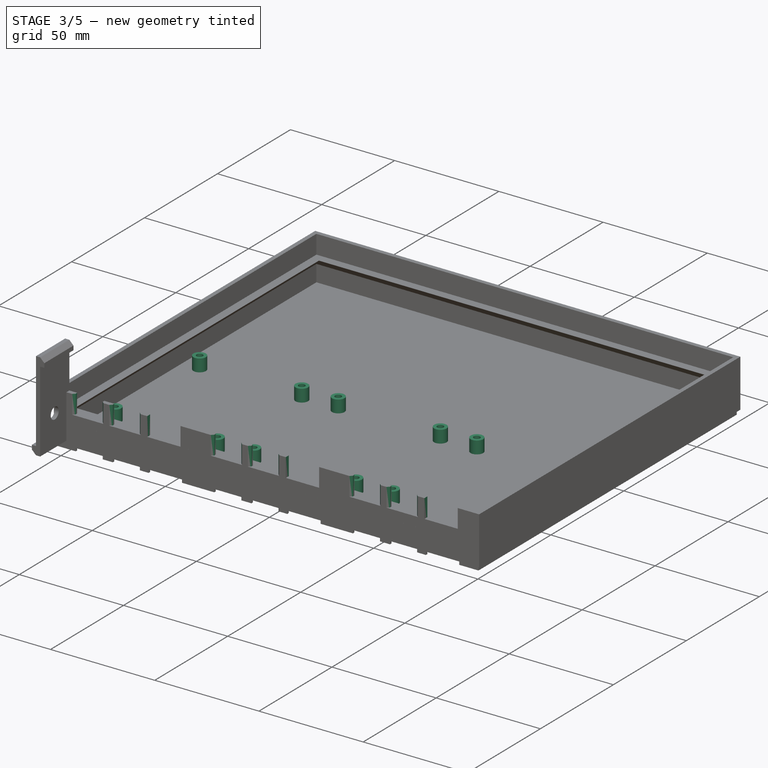
[diagram: stage 3 of 5 — iso view after this stage's code; geometry added in this stage tinted green]
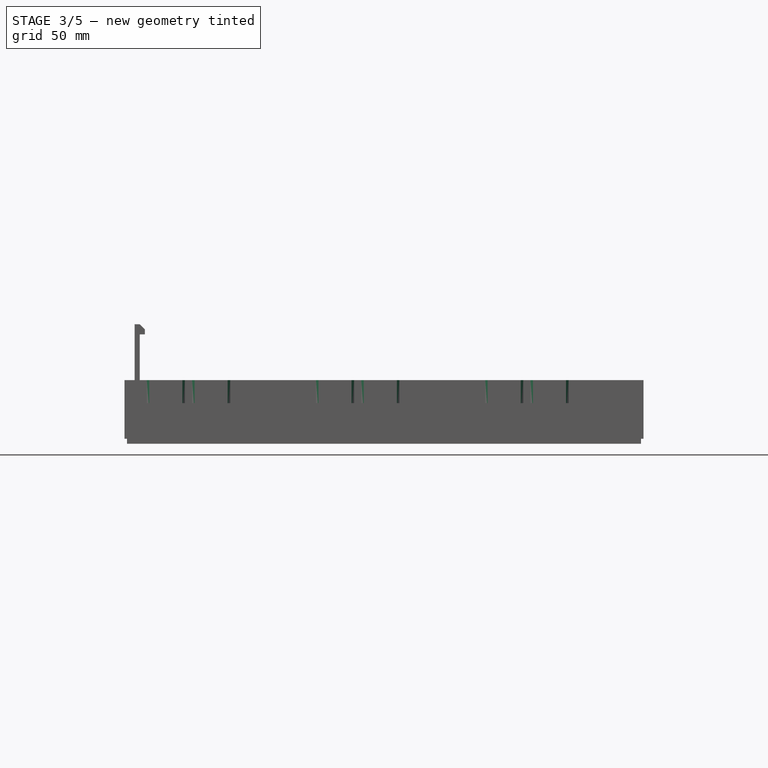
[diagram: stage 3 of 5 — front view after this stage's code; geometry added in this stage tinted green]
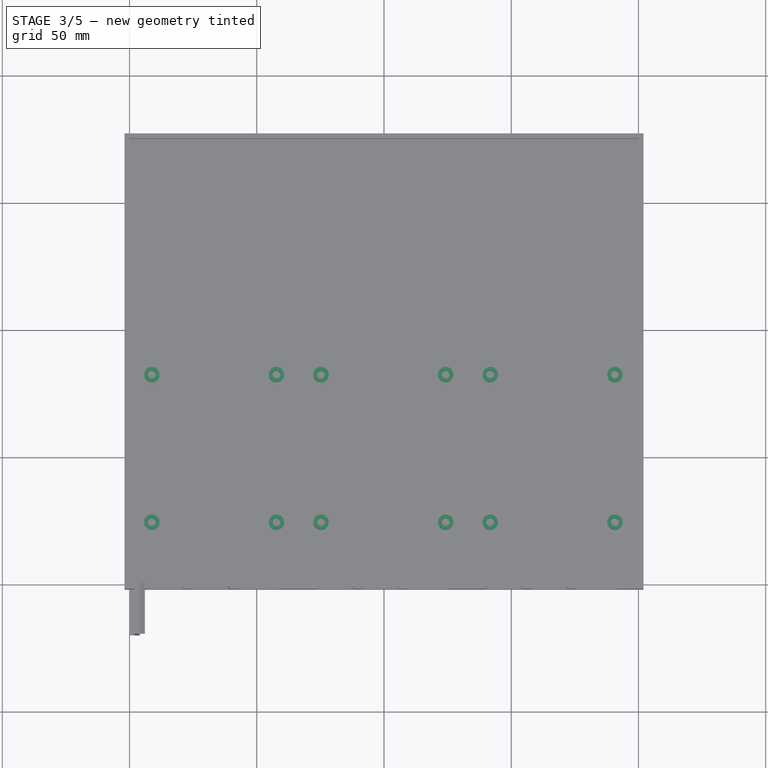
[diagram: stage 3 of 5 — top view after this stage's code; geometry added in this stage tinted green]
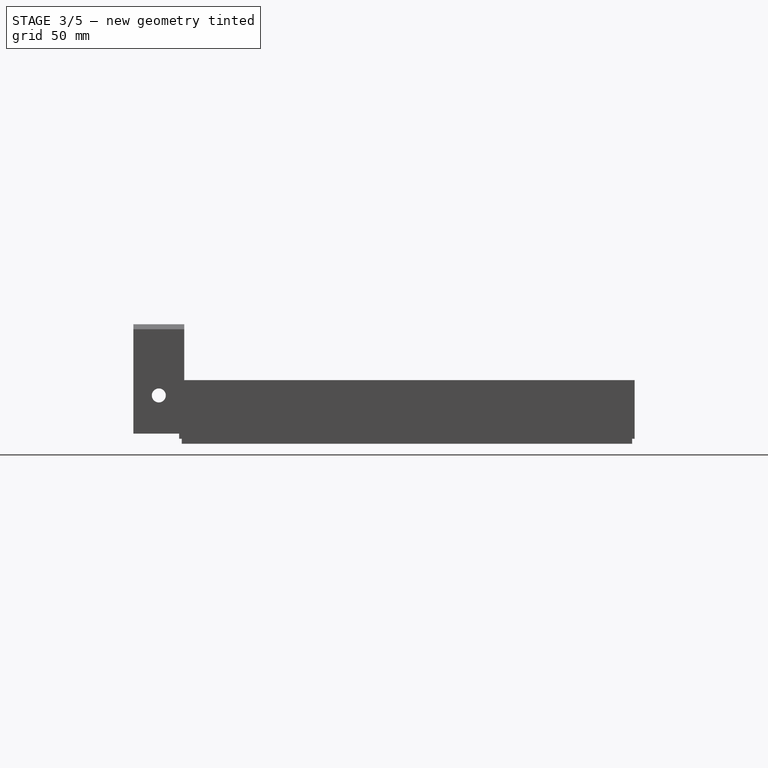
[diagram: stage 3 of 5 — right view after this stage's code; geometry added in this stage tinted green]
FEATURE [Sketcher::SketchObject] Sketch002  label="Front Holes Sketch"
  ArcFitTolerance = 1e-06
  AttachmentSupport = -> [Pad001]
  ExternalBSplineMaxDegree = 5
  ExternalBSplineTolerance = 0.0001
  FullyConstrained = true
  InternalTolerance = 1e-06
  InvalidShape = false
  MakeInternals = false
  MapMode = 5
  Placement = pos=(0,-2,0) rot=(1,0,0;1.5708rad)
  Support = -> [Pad001]
  TreeRank = 16
  ValidateShape = true
  expr: Constraints[24] = <<Parameters>>.RJ45_Width
  expr: Constraints[25] = <<Parameters>>.RJ45_Height
  expr: Constraints[26] = <<Parameters>>.USB3_Height
  expr: Constraints[27] = <<Parameters>>.USB2_Height
  expr: Constraints[28] = <<Parameters>>.USB3_Width
  expr: Constraints[29] = <<Parameters>>.USB2_Width
  expr: Constraints[30] = <<Parameters>>.USB2_to_USB3_Space
  expr: Constraints[31] = Spreadsheet.USB3_to_RJ45_Space
  expr: Constraints[32] = <<Parameters>>.Side_Margin + <<Parameters>>.Side_to_USB2_Space
  expr: Constraints[33] = <<Parameters>>.Mount_Height + <<Parameters>>.PCB_Thickness + <<Parameters>>.USB2_Y
  expr: Constraints[34] = <<Parameters>>.Mount_Height + <<Parameters>>.PCB_Thickness + <<Parameters>>.USB3_Y
  expr: Constraints[35] = <<Parameters>>.Mount_Height + <<Parameters>>.PCB_Thickness + <<Parameters>>.RJ45_Y
  sketch-geometry (12):
    g0: LineSegment StartX=7.75 StartY=23 StartZ=0 EndX=20.75 EndY=23 EndZ=0
    g1: LineSegment StartX=20.75 StartY=23 StartZ=0 EndX=20.75 EndY=9 EndZ=0
    g2: LineSegment StartX=20.75 StartY=9 StartZ=0 EndX=7.75 EndY=9 EndZ=0
    g3: LineSegment StartX=7.75 StartY=9 StartZ=0 EndX=7.75 EndY=23 EndZ=0
    g4: LineSegment StartX=25.55 StartY=23 StartZ=0 EndX=38.55 EndY=23 EndZ=0
    g5: LineSegment StartX=38.55 StartY=23 StartZ=0 EndX=38.55 EndY=8.5 EndZ=0
    g6: LineSegment StartX=38.55 StartY=8.5 StartZ=0 EndX=25.55 EndY=8.5 EndZ=0
    g7: LineSegment StartX=25.55 StartY=8.5 StartZ=0 EndX=25.55 EndY=23 EndZ=0
    g8: LineSegment StartX=42.75 StartY=21 StartZ=0 EndX=58.75 EndY=21 EndZ=0
    g9: LineSegment StartX=58.75 StartY=21 StartZ=0 EndX=58.75 EndY=7.5 EndZ=0
    g10: LineSegment StartX=58.75 StartY=7.5 StartZ=0 EndX=42.75 EndY=7.5 EndZ=0
    g11: LineSegment StartX=42.75 StartY=7.5 StartZ=0 EndX=42.75 EndY=21 EndZ=0
  constraints (36):
    c: Coincident(g0,g1)
    c: Coincident(g1,g2)
    c: Coincident(g2,g3)
    c: Coincident(g3,g0)
    c: Horizontal(g0)
    c: Horizontal(g2)
    c: Vertical(g1)
    c: Vertical(g3)
    c: Coincident(g4,g5)
    c: Coincident(g5,g6)
    c: Coincident(g6,g7)
    c: Coincident(g7,g4)
    c: Horizontal(g4)
    c: Horizontal(g6)
    c: Vertical(g5)
    c: Vertical(g7)
    c: Coincident(g8,g9)
    c: Coincident(g9,g10)
    c: Coincident(g10,g11)
    c: Coincident(g11,g8)
    c: Horizontal(g8)
    c: Horizontal(g10)
    c: Vertical(g9)
    c: Vertical(g11)
    c: DistanceX(g10,g10) = 16
    c: DistanceY(g9,g9) = 13.5
    c: DistanceY(g5,g5) = 14.5
    c: DistanceY(g1,g1) = 14
    c: DistanceX(g6,g6) = 13
    c: DistanceX(g2,g2) = 13
    c: DistanceX(g1,g6) = 4.8
    c: DistanceX(g5,g10) = 4.2
    c: DistanceX(g-1,g2) = 7.75
    c: DistanceY(g-1,g2) = 9
    c: DistanceY(g-1,g6) = 8.5
    c: DistanceY(g-1,g10) = 7.5
FEATURE [PartDesign::Pocket] Pocket  label="Front Holes"
  AddSubType = 1
  AutoTaperInnerAngle = true
  BaseFeature = -> Pad001
  CheckUpToFaceLimits = true
  ClaimChildren = false
  Fit = 0
  FitJoin = 0
  InnerFit = 0
  InnerFitJoin = 0
  InvalidShape = false
  Length = 2
  Length2 = 100
  Linearize = true
  NewSolid = false
  Profile = -> Sketch002
  Suppress = false
  TaperInnerAngle = 0
  TaperInnerAngleRev = 0
  TreeRank = 17
  Type = 0
  ValidateShape = true
  _ProfileBasedVersion = 1
  _Version = 1
  expr: Length = <<Parameters>>.Thickness
FEATURE [PartDesign::LinearPattern] LinearPattern  label="Front Holes Repeated"
  AddSubType = 0
  BaseFeature = -> Pocket
  CopyShape = false
  Direction = -> Sketch002 [H_Axis]
  InvalidShape = false
  Length = 133
  NewSolid = false
  Occurrences = 3
  OriginalSubs = -> [Pocket]
  Originals = -> [Pocket]
  ParallelTransform = true
  SubTransform = true
  Suppress = false
  TreeRank = 18
  ValidateShape = true
  _Version = 3
  expr: Length = 2 * (<<Parameters>>.PI_Width + <<Parameters>>.Space)
FEATURE [Sketcher::SketchObject] Sketch003  label="Standoff Mount Sketch"
  ArcFitTolerance = 1e-06
  ExternalBSplineMaxDegree = 5
  ExternalBSplineTolerance = 0.0001
  FullyConstrained = true
  InternalTolerance = 1e-06
  InvalidShape = false
  MakeInternals = false
  MapMode = 5
  TreeRank = 20
  ValidateShape = true
  expr: Constraints[0] = <<Parameters>>.Mount_Diameter
  expr: Constraints[10] = <<Parameters>>.Front_Margin + <<Parameters>>.FR_Y
  expr: Constraints[11] = <<Parameters>>.Front_Margin + <<Parameters>>.BL_Y
  expr: Constraints[13] = <<Parameters>>.Mount_Hole_Diameter
  expr: Constraints[4] = Spreadsheet.Side_Margin + <<Parameters>>.FR_X
  expr: Constraints[5] = Spreadsheet.Side_Margin + <<Parameters>>.FL_X
  expr: Constraints[6] = Spreadsheet.Side_Margin + <<Parameters>>.BR_X
  expr: Constraints[7] = Spreadsheet.Side_Margin + <<Parameters>>.BL_X
  expr: Constraints[8] = <<Parameters>>.Front_Margin + <<Parameters>>.BR_Y
  expr: Constraints[9] = <<Parameters>>.Front_Margin + <<Parameters>>.FR_Y
  sketch-geometry (8):
    g0: Circle CenterX=8.75 CenterY=82.5 CenterZ=0 NormalX=0 NormalY=0 NormalZ=1 AngleXU=0 Radius=3
    g1: Circle CenterX=57.75 CenterY=24.5 CenterZ=0 NormalX=0 NormalY=0 NormalZ=1 AngleXU=0 Radius=3
    g2: Circle CenterX=8.75 CenterY=24.5 CenterZ=0 NormalX=0 NormalY=0 NormalZ=1 AngleXU=0 Radius=3
    g3: Circle CenterX=57.75 CenterY=82.5 CenterZ=0 NormalX=0 NormalY=0 NormalZ=1 AngleXU=0 Radius=3
    g4: Circle CenterX=57.75 CenterY=82.5 CenterZ=0 NormalX=0 NormalY=0 NormalZ=1 AngleXU=0 Radius=1.52
    g5: Circle CenterX=8.75 CenterY=82.5 CenterZ=0 NormalX=0 NormalY=0 NormalZ=1 AngleXU=0 Radius=1.52
    g6: Circle CenterX=8.75 CenterY=24.5 CenterZ=0 NormalX=0 NormalY=0 NormalZ=1 AngleXU=0 Radius=1.52
    g7: Circle CenterX=57.75 CenterY=24.5 CenterZ=0 NormalX=0 NormalY=0 NormalZ=1 AngleXU=0 Radius=1.52
  constraints (20):
    c: Diameter(g2) = 6
    c: Equal(g2,g3)
    c: Equal(g2,g0)
    c: Equal(g2,g1)
    c: DistanceX(g-1,g1) = 57.75
    c: DistanceX(g-1,g0) = 8.75
    c: DistanceX(g-1,g3) = 57.75
    c: DistanceX(g-1,g2) = 8.75
    c: DistanceY(g-1,g3) = 82.5
    c: DistanceY(g-1,g1) = 24.5
    c: DistanceY(g-1,g2) = 24.5
    c: DistanceY(g-1,g0) = 82.5
    c: Coincident(g4,g3)
    c: Diameter(g4) = 3.04
    c: Coincident(g5,g0)
    c: Coincident(g6,g2)
    c: Coincident(g7,g1)
    c: Equal(g4,g5)
    c: Equal(g4,g7)
    c: Equal(g4,g6)
FEATURE [PartDesign::Pad] Pad002  label="Standoff Mounts"
  AddSubType = 0
  AlongSketchNormal = false
  AutoTaperInnerAngle = true
  BaseFeature = -> LinearPattern
  CheckUpToFaceLimits = true
  ClaimChildren = false
  Direction = (0,0,1)
  Fit = 0
  FitJoin = 0
  InnerFit = 0
  InnerFitJoin = 0
  InvalidShape = false
  Length = 6
  Length2 = 100
  Linearize = true
  NewSolid = false
  Profile = -> Sketch003
  Suppress = false
  TaperInnerAngle = 0
  TaperInnerAngleRev = 0
  TreeRank = 21
  Type = 0
  ValidateShape = true
  _ProfileBasedVersion = 1
  expr: Length = <<Parameters>>.Mount_Height
FEATURE [PartDesign::LinearPattern] LinearPattern001  label="Standoff Mounts Repeated"
  AddSubType = 0
  BaseFeature = -> Pad002
  CopyShape = false
  Direction = -> Sketch003 [H_Axis]
  InvalidShape = false
  Length = 133
  NewSolid = false
  Occurrences = 3
  OriginalSubs = -> [Pad002]
  Originals = -> [Pad002]
  ParallelTransform = true
  SubTransform = true
  Suppress = false
  TreeRank = 22
  ValidateShape = true
  _Version = 3
  expr: Length = 2 * (<<Parameters>>.PI_Width + <<Parameters>>.Space)
FEATURE [PartDesign::Chamfer] Chamfer
  AddSubType = 0
  Angle = 45
  Base = -> LinearPattern001 [Edge37,Edge38,Edge36,Edge33,Edge34,Edge32,Edge29,Edge25,Edge24,Edge26,Edge21,Edge22,Edge20,Edge13,Edge12,Edge14,Edge9,Edge10,Edge8]
  BaseFeature = -> LinearPattern001
  ChamferType = 0
  FlipDirection = false
  InvalidShape = false
  NewSolid = false
  Size = 1
  Size2 = 1
  SupportTransform = false
  Suppress = false
  TreeRank = 23
  ValidateShape = true
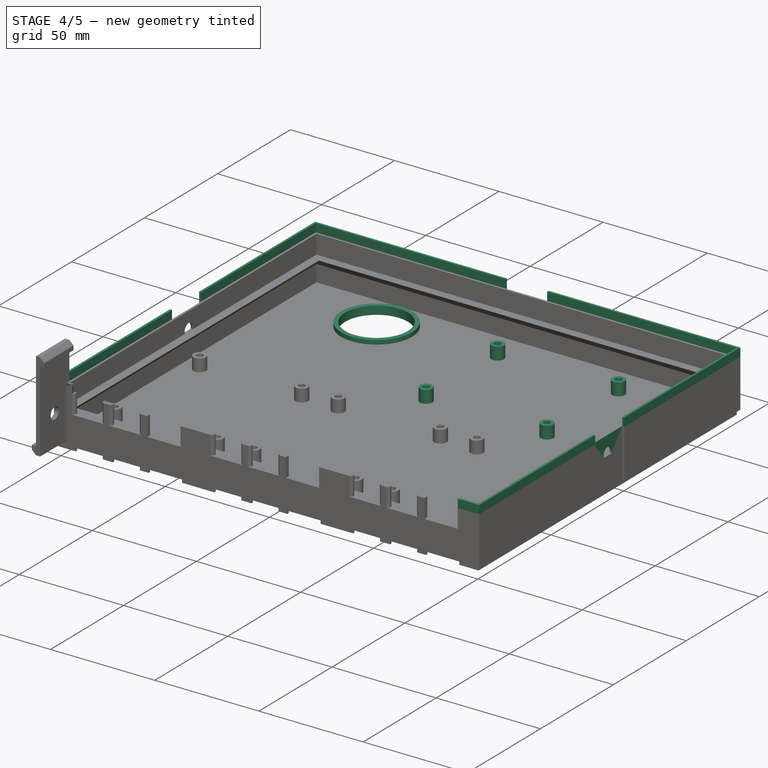
[diagram: stage 4 of 5 — iso view after this stage's code; geometry added in this stage tinted green]
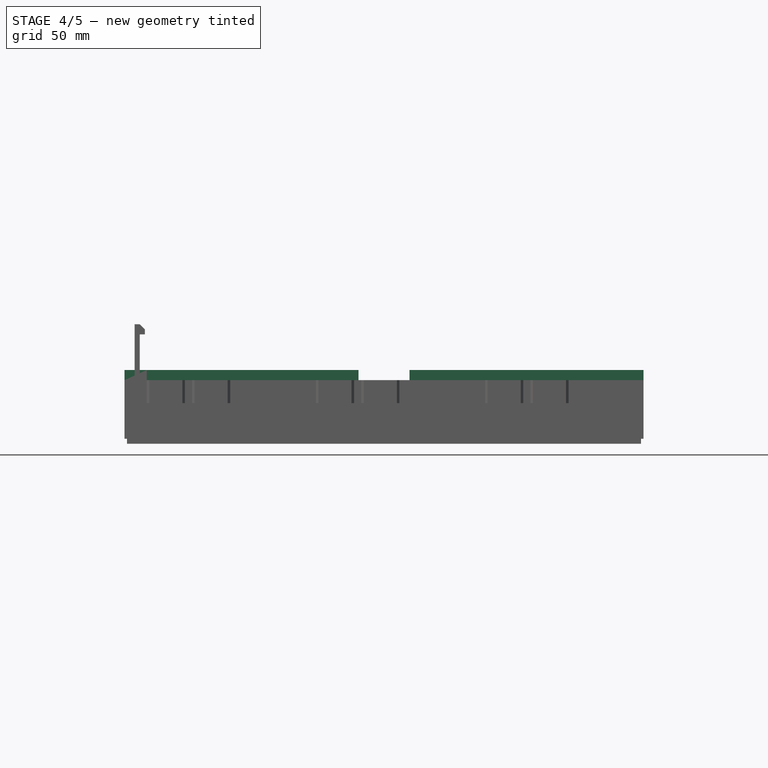
[diagram: stage 4 of 5 — front view after this stage's code; geometry added in this stage tinted green]
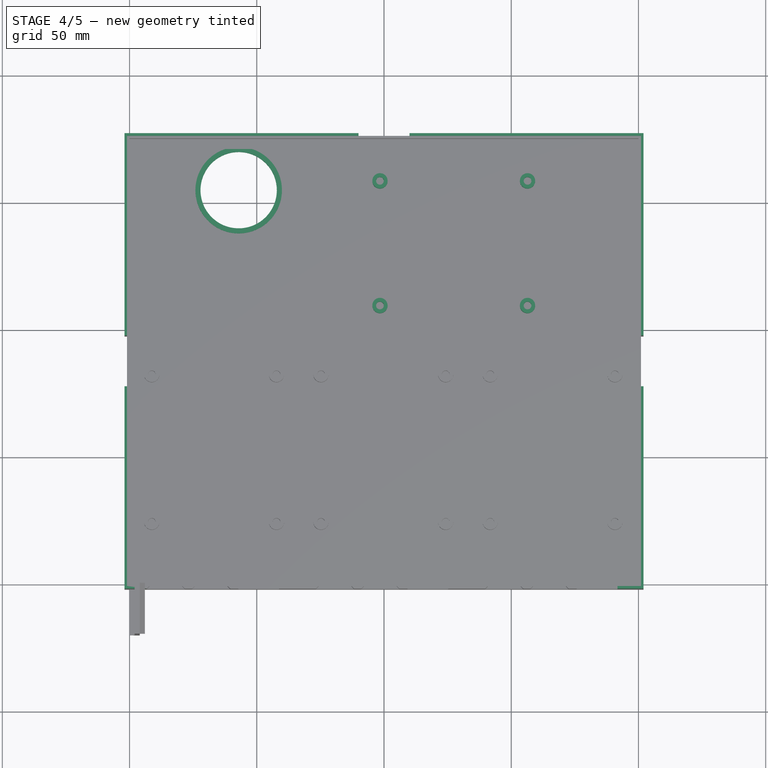
[diagram: stage 4 of 5 — top view after this stage's code; geometry added in this stage tinted green]
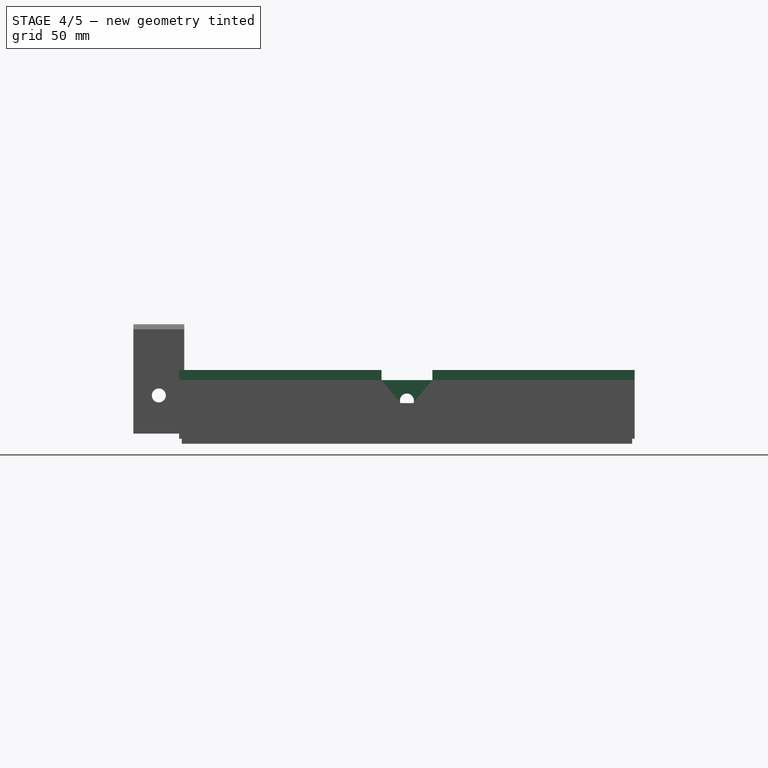
[diagram: stage 4 of 5 — right view after this stage's code; geometry added in this stage tinted green]
FEATURE [Sketcher::SketchObject] Sketch004  label="Passthrough Supports Sketch"
  ArcFitTolerance = 1e-06
  AttachmentSupport = -> [Chamfer]
  ExternalBSplineMaxDegree = 5
  ExternalBSplineTolerance = 0.0001
  FullyConstrained = true
  InternalTolerance = 1e-06
  InvalidShape = false
  MakeInternals = false
  MapMode = 5
  Support = -> [Chamfer]
  TreeRank = 24
  ValidateShape = true
  expr: Constraints[0] = <<Parameters>>.Passthrough_Diameter + 2 * <<Parameters>>.Thickness
  expr: Constraints[1] = <<Parameters>>.Passthrough_X
  expr: Constraints[2] = <<Parameters>>.Passthrough_Y
  sketch-geometry (1):
    g0: Circle CenterX=42.88 CenterY=155 CenterZ=0 NormalX=0 NormalY=0 NormalZ=1 AngleXU=0 Radius=17
  constraints (3):
    c: Diameter(g0) = 34
    c: DistanceX(g-1,g0) = 42.88
    c: DistanceY(g-1,g0) = 155
FEATURE [PartDesign::Pad] Pad003  label="Passthrough Supports"
  AddSubType = 0
  AlongSketchNormal = false
  AutoTaperInnerAngle = true
  BaseFeature = -> Chamfer
  CheckUpToFaceLimits = true
  ClaimChildren = false
  Direction = (0,0,1)
  Fit = 0
  FitJoin = 0
  InnerFit = 0
  InnerFitJoin = 0
  InvalidShape = false
  Length = 2
  Length2 = 100
  Linearize = true
  NewSolid = false
  Profile = -> Sketch004
  Suppress = false
  TaperInnerAngle = 0
  TaperInnerAngleRev = 0
  TreeRank = 25
  Type = 0
  ValidateShape = true
  _ProfileBasedVersion = 1
  expr: Length = <<Parameters>>.Thickness
FEATURE [Sketcher::SketchObject] Sketch005  label="Passthrough Hole Sketch"
  ArcFitTolerance = 1e-06
  AttachmentSupport = -> [Pad003]
  ExternalBSplineMaxDegree = 5
  ExternalBSplineTolerance = 0.0001
  FullyConstrained = true
  InternalTolerance = 1e-06
  InvalidShape = false
  MakeInternals = false
  MapMode = 5
  Placement = pos=(0,0,2) rot=(0,0,1;0rad)
  Support = -> [Pad003]
  TreeRank = 26
  ValidateShape = true
  expr: Constraints[0] = <<Parameters>>.Passthrough_Diameter
  expr: Constraints[1] = <<Parameters>>.Passthrough_X
  expr: Constraints[2] = <<Parameters>>.Passthrough_Y
  sketch-geometry (1):
    g0: Circle CenterX=42.88 CenterY=155 CenterZ=0 NormalX=0 NormalY=0 NormalZ=1 AngleXU=0 Radius=15
  constraints (3):
    c: Diameter(g0) = 30
    c: DistanceX(g-1,g0) = 42.88
    c: DistanceY(g-1,g0) = 155
FEATURE [PartDesign::Pocket] Pocket001  label="Passthrough Hole"
  AddSubType = 1
  AutoTaperInnerAngle = true
  BaseFeature = -> Pad003
  CheckUpToFaceLimits = true
  ClaimChildren = false
  Fit = 0
  FitJoin = 0
  InnerFit = 0
  InnerFitJoin = 0
  InvalidShape = false
  Length = 4
  Length2 = 100
  Linearize = true
  NewSolid = false
  Profile = -> Sketch005
  Suppress = false
  TaperInnerAngle = 0
  TaperInnerAngleRev = 0
  TreeRank = 27
  Type = 0
  ValidateShape = true
  _ProfileBasedVersion = 1
  _Version = 1
  expr: Length = <<Parameters>>.Thickness * 2
FEATURE [Sketcher::SketchObject] Sketch006  label="Wall Recess Sketch"
  ArcFitTolerance = 1e-06
  AttachmentSupport = -> [Pocket001]
  ExternalBSplineMaxDegree = 5
  ExternalBSplineTolerance = 0.0001
  FullyConstrained = true
  InternalTolerance = 1e-06
  InvalidShape = false
  MakeInternals = false
  MapMode = 5
  Placement = pos=(0,0,21) rot=(0,0,1;0rad)
  Support = -> [Pocket001]
  TreeRank = 28
  ValidateShape = true
  expr: Constraints[10] = <<Parameters>>.Depth + 2 * <<Parameters>>.Thickness
  expr: Constraints[11] = <<Parameters>>.Thickness
  expr: Constraints[20] = <<Parameters>>.Thickness / 2
  expr: Constraints[21] = <<Parameters>>.Thickness / 2
  expr: Constraints[22] = <<Parameters>>.Width + <<Parameters>>.Thickness
  expr: Constraints[23] = <<Parameters>>.Depth + <<Parameters>>.Thickness
  expr: Constraints[25] = <<Parameters>>.Side_Margin + <<Parameters>>.Side_to_USB2_Space - 1
  expr: Constraints[27] = <<Parameters>>.Side_Margin + 3 * <<Parameters>>.PI_Width + 2 * <<Parameters>>.Space - 3
  expr: Constraints[8] = <<Parameters>>.Width + 2 * <<Parameters>>.Thickness
  expr: Constraints[9] = <<Parameters>>.Thickness
  sketch-geometry (12):
    g0: LineSegment StartX=-2 StartY=177 StartZ=0 EndX=202 EndY=177 EndZ=0
    g1: LineSegment StartX=202 StartY=177 StartZ=0 EndX=202 EndY=-2 EndZ=0
    g2: LineSegment StartX=202 StartY=-2 StartZ=0 EndX=191.75 EndY=-2 EndZ=0
    g3: LineSegment StartX=-2 StartY=-2 StartZ=0 EndX=-2 EndY=177 EndZ=0
    g4: LineSegment StartX=-1 StartY=-1 StartZ=0 EndX=6.75 EndY=-1 EndZ=0
    g5: LineSegment StartX=201 StartY=-1 StartZ=0 EndX=201 EndY=176 EndZ=0
    g6: LineSegment StartX=201 StartY=176 StartZ=0 EndX=-1 EndY=176 EndZ=0
    g7: LineSegment StartX=-1 StartY=176 StartZ=0 EndX=-1 EndY=-1 EndZ=0
    g8: LineSegment StartX=6.75 StartY=-2 StartZ=0 EndX=6.75 EndY=-1 EndZ=0
    g9: LineSegment StartX=191.75 StartY=-1 StartZ=0 EndX=191.75 EndY=-2 EndZ=0
    g10: LineSegment StartX=6.75 StartY=-2 StartZ=0 EndX=-2 EndY=-2 EndZ=0
    g11: LineSegment StartX=191.75 StartY=-1 StartZ=0 EndX=201 EndY=-1 EndZ=0
  constraints (36):
    c: Coincident(g0,g1)
    c: Coincident(g1,g2)
    c: Coincident(g10,g3)
    c: Coincident(g3,g0)
    c: Horizontal(g0)
    c: Horizontal(g2)
    c: Vertical(g1)
    c: Vertical(g3)
    c: DistanceX(g10,g2) = 204
    c: DistanceX(g10,g-1) = 2
    c: DistanceY(g3,g3) = 179
    c: DistanceY(g10,g-1) = 2
    c: Coincident(g11,g5)
    c: Coincident(g5,g6)
    c: Coincident(g6,g7)
    c: Coincident(g7,g4)
    c: Horizontal(g4)
    c: Horizontal(g6)
    c: Vertical(g5)
    c: Vertical(g7)
    c: DistanceY(g4,g-1) = 1
    c: DistanceX(g4,g-1) = 1
    c: DistanceX(g6,g6) = 202
    c: DistanceY(g7,g7) = 177
    c: Vertical(g8)
    c: DistanceX(g-1,g8) = 6.75
    c: Vertical(g9)
    c: DistanceX(g-1,g9) = 191.75
    c: Coincident(g2,g9)
    c: Coincident(g10,g8)
    c: Coincident(g4,g8)
    c: Coincident(g11,g9)
    c: Equal(g7,g5)
    c: Equal(g3,g1)
    c: Horizontal(g10)
    c: Horizontal(g11)
FEATURE [PartDesign::Pad] Pad004  label="Wall Recess"
  AddSubType = 0
  AlongSketchNormal = false
  AutoTaperInnerAngle = true
  BaseFeature = -> Pocket001
  CheckUpToFaceLimits = true
  ClaimChildren = false
  Direction = (0,0,1)
  Fit = 0
  FitJoin = 0
  InnerFit = 0
  InnerFitJoin = 0
  InvalidShape = false
  Length = 4
  Length2 = 100
  Linearize = true
  NewSolid = false
  Profile = -> Sketch006
  Suppress = false
  TaperInnerAngle = 0
  TaperInnerAngleRev = 0
  TreeRank = 29
  Type = 0
  ValidateShape = true
  _ProfileBasedVersion = 1
  expr: Length = <<Parameters>>.Thickness * 2
FEATURE [Sketcher::SketchObject] Sketch007  label="Extra Mounts Sketch"
  ArcFitTolerance = 1e-06
  AttachmentSupport = -> [Pad004]
  ExternalBSplineMaxDegree = 5
  ExternalBSplineTolerance = 0.0001
  FullyConstrained = false
  InternalTolerance = 1e-06
  InvalidShape = false
  MakeInternals = false
  MapMode = 5
  Support = -> [Pad004]
  TreeRank = 30
  ValidateShape = true
  expr: Constraints[0] = <<Parameters>>.Mount_Diameter
  expr: Constraints[14] = <<Parameters>>.Mount_Hole_Diameter
  expr: Constraints[4] = <<Parameters>>.Mounting_Hole_Depth
  expr: Constraints[5] = <<Parameters>>.Mounting_Hole_Depth
  expr: Constraints[7] = <<Parameters>>.Mounting_Hole_Width
  expr: Constraints[8] = <<Parameters>>.Mounting_Hole_Width
  sketch-geometry (8):
    g0: Circle CenterX=98.4081 CenterY=158.607 CenterZ=0 NormalX=0 NormalY=0 NormalZ=1 AngleXU=0 Radius=3
    g1: Circle CenterX=98.4081 CenterY=109.607 CenterZ=0 NormalX=0 NormalY=0 NormalZ=1 AngleXU=0 Radius=3
    g2: Circle CenterX=156.408 CenterY=158.607 CenterZ=0 NormalX=0 NormalY=0 NormalZ=1 AngleXU=0 Radius=3
    g3: Circle CenterX=156.408 CenterY=109.607 CenterZ=0 NormalX=0 NormalY=0 NormalZ=1 AngleXU=0 Radius=3
    g4: Circle CenterX=98.4081 CenterY=109.607 CenterZ=0 NormalX=0 NormalY=0 NormalZ=1 AngleXU=0 Radius=1.52
    g5: Circle CenterX=98.4081 CenterY=158.607 CenterZ=0 NormalX=0 NormalY=0 NormalZ=1 AngleXU=0 Radius=1.52
    g6: Circle CenterX=156.408 CenterY=158.607 CenterZ=0 NormalX=0 NormalY=0 NormalZ=1 AngleXU=0 Radius=1.52
    g7: Circle CenterX=156.408 CenterY=109.607 CenterZ=0 NormalX=0 NormalY=0 NormalZ=1 AngleXU=0 Radius=1.52
  constraints (18):
    c: Diameter(g0) = 6
    c: Equal(g0,g1)
    c: Equal(g0,g2)
    c: Equal(g0,g3)
    c: DistanceX(g1,g3) = 58
    c: DistanceX(g0,g2) = 58
    c: DistanceX(g3,g2) = 0
    c: DistanceY(g1,g0) = 49
    c: DistanceY(g3,g2) = 49
    c: DistanceY(g1,g3) = 0
    c: Coincident(g4,g1)
    c: Coincident(g5,g0)
    c: Coincident(g6,g2)
    c: Coincident(g7,g3)
    c: Diameter(g7) = 3.04
    c: Equal(g7,g4)
    c: Equal(g7,g6)
    c: Equal(g7,g5)
FEATURE [PartDesign::Pad] Pad005  label="Extra Mounts"
  AddSubType = 0
  AlongSketchNormal = false
  AutoTaperInnerAngle = true
  BaseFeature = -> Pad004
  CheckUpToFaceLimits = true
  ClaimChildren = false
  Direction = (0,0,1)
  Fit = 0
  FitJoin = 0
  InnerFit = 0
  InnerFitJoin = 0
  InvalidShape = false
  Length = 6
  Length2 = 100
  Linearize = true
  NewSolid = false
  Profile = -> Sketch007
  Suppress = false
  TaperInnerAngle = 0
  TaperInnerAngleRev = 0
  TreeRank = 31
  Type = 0
  ValidateShape = true
  _ProfileBasedVersion = 1
  expr: Length = <<Parameters>>.Mount_Height
FEATURE [Sketcher::SketchObject] Sketch008  label="Locking Recess Sketch"
  ArcFitTolerance = 1e-06
  AttachmentSupport = -> [Pad005]
  ExternalBSplineMaxDegree = 5
  ExternalBSplineTolerance = 0.0001
  FullyConstrained = true
  InternalTolerance = 1e-06
  InvalidShape = false
  MakeInternals = false
  MapMode = 5
  Placement = pos=(0,0,25) rot=(0,0,1;0rad)
  Support = -> [Pad005]
  TreeRank = 32
  ValidateShape = true
  expr: Constraints[27] = <<Parameters>>.Thickness / 2
  expr: Constraints[28] = <<Parameters>>.Locking_Width
  expr: Constraints[33] = <<Parameters>>.Depth / 2
  expr: Constraints[34] = <<Parameters>>.Depth / 2
  expr: Constraints[35] = <<Parameters>>.Width / 2
  expr: Constraints[36] = <<Parameters>>.Thickness / 2
  expr: Constraints[37] = <<Parameters>>.Width + <<Parameters>>.Thickness / 2
  expr: Constraints[38] = <<Parameters>>.Thickness / 2 + <<Parameters>>.Depth
  sketch-geometry (15):
    g0: LineSegment StartX=-2 StartY=97.5 StartZ=0 EndX=-2 EndY=77.5 EndZ=0
    g1: LineSegment StartX=-2 StartY=77.5 StartZ=0 EndX=-1 EndY=77.5 EndZ=0
    g2: LineSegment StartX=-1 StartY=77.5 StartZ=0 EndX=-1 EndY=97.5 EndZ=0
    g3: LineSegment StartX=-1 StartY=97.5 StartZ=0 EndX=-2 EndY=97.5 EndZ=0
    g4: GeomPoint [constr] X=-1.5 Y=87.5 Z=0
    g5: LineSegment StartX=90 StartY=177 StartZ=0 EndX=90 EndY=176 EndZ=0
    g6: LineSegment StartX=90 StartY=176 StartZ=0 EndX=110 EndY=176 EndZ=0
    g7: LineSegment StartX=110 StartY=176 StartZ=0 EndX=110 EndY=177 EndZ=0
    g8: LineSegment StartX=110 StartY=177 StartZ=0 EndX=90 EndY=177 EndZ=0
    g9: GeomPoint [constr] X=100 Y=176.5 Z=0
    g10: LineSegment StartX=202 StartY=77.5 StartZ=0 EndX=202 EndY=97.5 EndZ=0
    g11: LineSegment StartX=202 StartY=97.5 StartZ=0 EndX=201 EndY=97.5 EndZ=0
    g12: LineSegment StartX=201 StartY=97.5 StartZ=0 EndX=201 EndY=77.5 EndZ=0
    g13: LineSegment StartX=201 StartY=77.5 StartZ=0 EndX=202 EndY=77.5 EndZ=0
    g14: GeomPoint [constr] X=201.5 Y=87.5 Z=0
  constraints (39):
    c: Coincident(g0,g1)
    c: Coincident(g1,g2)
    c: Coincident(g2,g3)
    c: Coincident(g3,g0)
    c: Horizontal(g1)
    c: Horizontal(g3)
    c: Vertical(g0)
    c: Vertical(g2)
    c: Symmetric(g1,g0,g4)
    c: Coincident(g5,g6)
    c: Coincident(g6,g7)
    c: Coincident(g7,g8)
    c: Coincident(g8,g5)
    c: Horizontal(g6)
    c: Horizontal(g8)
    c: Vertical(g5)
    c: Vertical(g7)
    c: Symmetric(g6,g5,g9)
    c: Coincident(g10,g11)
    c: Coincident(g11,g12)
    c: Coincident(g12,g13)
    c: Coincident(g13,g10)
    c: Horizontal(g11)
    c: Horizontal(g13)
    c: Vertical(g10)
    c: Vertical(g12)
    c: Symmetric(g11,g10,g14)
    c: DistanceX(g13,g13) = 1
    c: DistanceY(g10,g10) = 20
    c: Equal(g13,g7)
    c: Equal(g13,g1)
    c: Equal(g10,g6)
    c: Equal(g10,g0)
    c: DistanceY(g-1,g4) = 87.5
    c: DistanceY(g-1,g14) = 87.5
    c: DistanceX(g-1,g9) = 100
    c: DistanceX(g1,g-1) = 1
    c: DistanceX(g-1,g12) = 201
    c: DistanceY(g-1,g5) = 176
FEATURE [PartDesign::Pocket] Pocket002  label="Locking Recess"
  AddSubType = 1
  AutoTaperInnerAngle = true
  BaseFeature = -> Pad005
  CheckUpToFaceLimits = true
  ClaimChildren = false
  Fit = 0
  FitJoin = 0
  InnerFit = 0
  InnerFitJoin = 0
  InvalidShape = false
  Length = 27
  Length2 = 100
  Linearize = true
  NewSolid = false
  Profile = -> Sketch008
  Suppress = false
  TaperInnerAngle = 0
  TaperInnerAngleRev = 0
  TreeRank = 33
  Type = 0
  ValidateShape = true
  _ProfileBasedVersion = 1
  _Version = 1
  expr: Length = <<Parameters>>.Bottom_Height + <<Parameters>>.Thickness * 3
FEATURE [Sketcher::SketchObject] Sketch009  label="Side Locking Holes Sketch"
  ArcFitTolerance = 1e-06
  AttachmentSupport = -> [Pocket002]
  ExternalBSplineMaxDegree = 5
  ExternalBSplineTolerance = 0.0001
  FullyConstrained = true
  InternalTolerance = 1e-06
  InvalidShape = false
  MakeInternals = false
  MapMode = 5
  Placement = pos=(-1,0,0) rot=(0.57735,-0.57735,-0.57735;2.0944rad)
  Support = -> [Pocket002]
  TreeRank = 34
  ValidateShape = true
  expr: Constraints[0] = <<Parameters>>.Depth / 2
  expr: Constraints[1] = <<Parameters>>.Locking_Hole_Diameter
  expr: Constraints[2] = <<Parameters>>.Locking_Hole_Offset - <<Parameters>>.Thickness
  sketch-geometry (1):
    g0: Circle CenterX=-87.5 CenterY=13 CenterZ=0 NormalX=0 NormalY=0 NormalZ=1 AngleXU=0 Radius=2.75
  constraints (3):
    c: DistanceX(g0,g-1) = 87.5
    c: Diameter(g0) = 5.5
    c: DistanceY(g-1,g0) = 13
FEATURE [PartDesign::Pocket] Pocket003  label="Side Locking Holes"
  AddSubType = 1
  AutoTaperInnerAngle = true
  BaseFeature = -> Pocket002
  CheckUpToFaceLimits = true
  ClaimChildren = false
  Fit = 0
  FitJoin = 0
  InnerFit = 0
  InnerFitJoin = 0
  InvalidShape = false
  Length = 202
  Length2 = 100
  Linearize = true
  NewSolid = false
  Profile = -> Sketch009
  Suppress = false
  TaperInnerAngle = 0
  TaperInnerAngleRev = 0
  TreeRank = 35
  Type = 0
  ValidateShape = true
  _ProfileBasedVersion = 1
  _Version = 1
  expr: Length = <<Parameters>>.Width + <<Parameters>>.Thickness
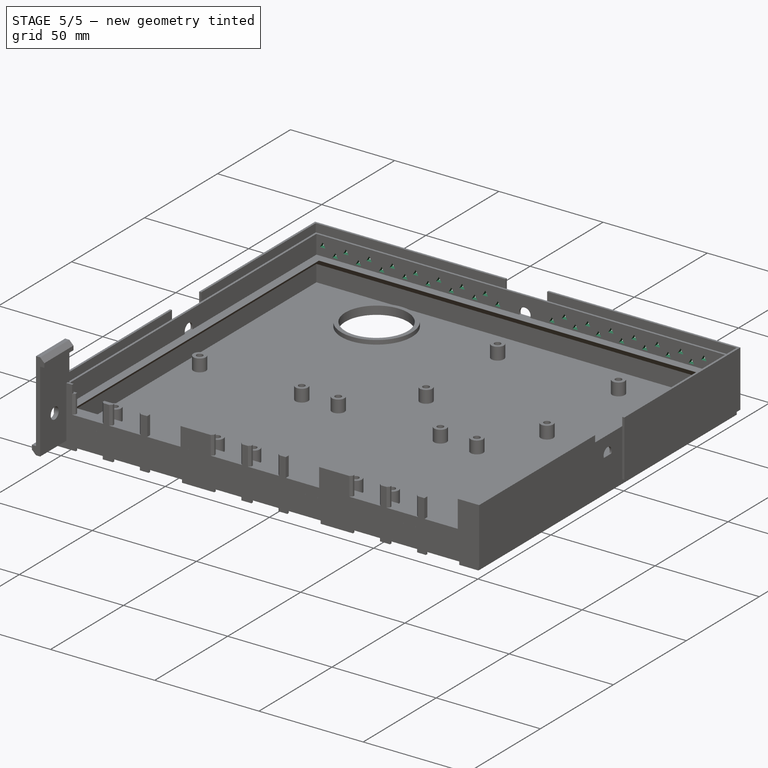
[diagram: stage 5 of 5 — iso view after this stage's code; geometry added in this stage tinted green]
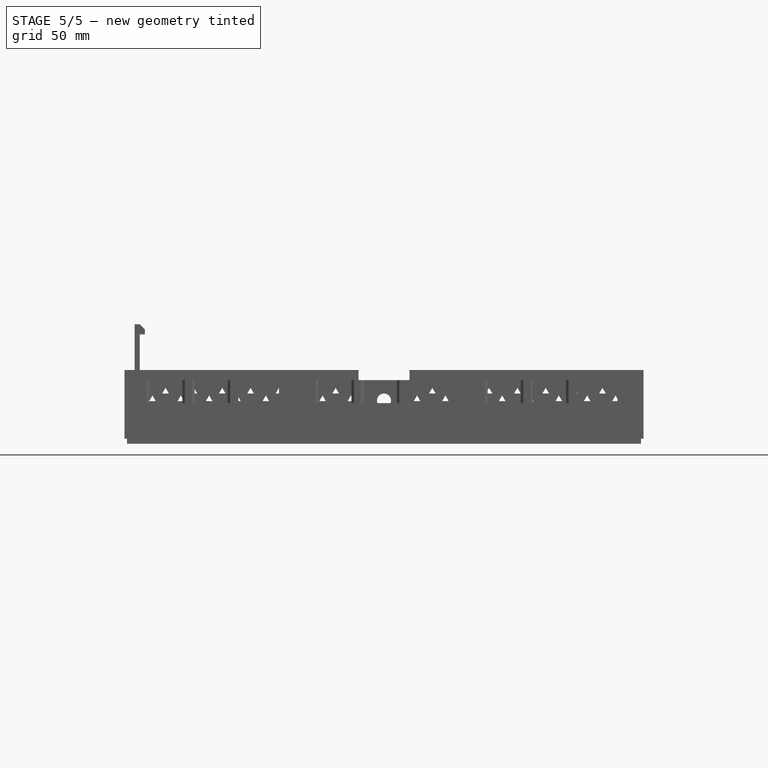
[diagram: stage 5 of 5 — front view after this stage's code; geometry added in this stage tinted green]
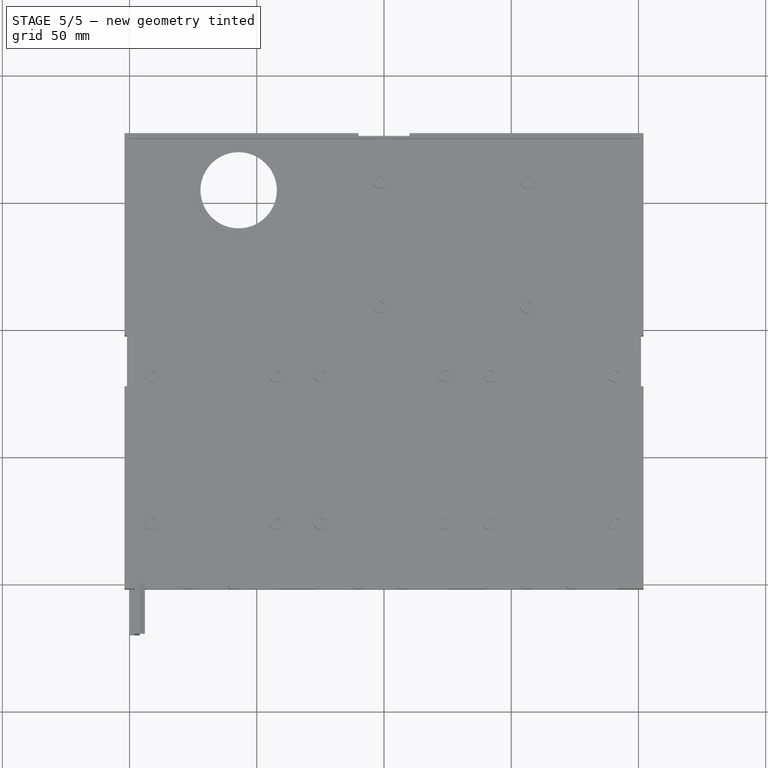
[diagram: stage 5 of 5 — top view after this stage's code; geometry added in this stage tinted green]
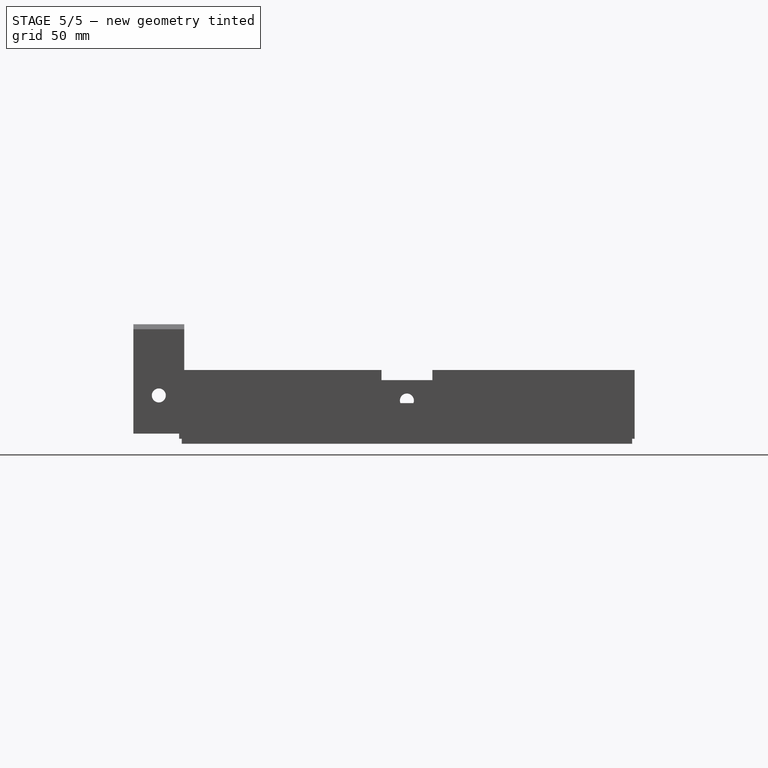
[diagram: stage 5 of 5 — right view after this stage's code; geometry added in this stage tinted green]
FEATURE [Sketcher::SketchObject] Sketch010  label="Back Locking Holes Sketch"
  ArcFitTolerance = 1e-06
  AttachmentSupport = -> [Pocket003]
  ExternalBSplineMaxDegree = 5
  ExternalBSplineTolerance = 0.0001
  FullyConstrained = true
  InternalTolerance = 1e-06
  InvalidShape = false
  MakeInternals = false
  MapMode = 5
  Placement = pos=(0,176,0) rot=(0,0.707107,0.707107;3.14159rad)
  Support = -> [Pocket003]
  TreeRank = 36
  ValidateShape = true
  expr: Constraints[0] = <<Parameters>>.Width / 2
  expr: Constraints[1] = <<Parameters>>.Locking_Hole_Offset - <<Parameters>>.Thickness
  expr: Constraints[2] = <<Parameters>>.Locking_Hole_Diameter
  sketch-geometry (1):
    g0: Circle CenterX=-100 CenterY=13 CenterZ=0 NormalX=0 NormalY=0 NormalZ=1 AngleXU=0 Radius=2.75
  constraints (3):
    c: DistanceX(g0,g-1) = 100
    c: DistanceY(g-1,g0) = 13
    c: Diameter(g0) = 5.5
FEATURE [PartDesign::Pocket] Pocket004  label="Back Locking Holes"
  AddSubType = 1
  AutoTaperInnerAngle = true
  BaseFeature = -> Pocket003
  CheckUpToFaceLimits = true
  ClaimChildren = false
  Fit = 0
  FitJoin = 0
  InnerFit = 0
  InnerFitJoin = 0
  InvalidShape = false
  Length = 1
  Length2 = 100
  Linearize = true
  NewSolid = false
  Profile = -> Sketch010
  Suppress = false
  TaperInnerAngle = 0
  TaperInnerAngleRev = 0
  TreeRank = 37
  Type = 0
  ValidateShape = true
  _ProfileBasedVersion = 1
  _Version = 1
  expr: Length = <<Parameters>>.Thickness / 2
FEATURE [Sketcher::SketchObject] Sketch011  label="Back Holes 1 Sketch"
  ArcFitTolerance = 1e-06
  AttachmentSupport = -> [Pocket004]
  ExternalBSplineMaxDegree = 5
  ExternalBSplineTolerance = 0.0001
  FullyConstrained = true
  InternalTolerance = 1e-06
  InvalidShape = false
  MakeInternals = false
  MapMode = 5
  Placement = pos=(0,175,0) rot=(1,0,0;1.5708rad)
  Support = -> [Pocket004]
  TreeRank = 38
  ValidateShape = true
  expr: Constraints[21] = <<Parameters>>.Air_Hole_Diameter * 2
  expr: Constraints[33] = <<Parameters>>.Air_Hole_Diameter * 2
  expr: Constraints[53] = <<Parameters>>.Air_Hole_Diameter * 2
  expr: Constraints[54] = <<Parameters>>.Air_Hole_Diameter
  expr: Constraints[57] = <<Parameters>>.Air_Hole_Diameter * 2
  expr: Constraints[58] = <<Parameters>>.Air_Hole_Diameter
  expr: Constraints[59] = <<Parameters>>.Bottom_Height / 2
  expr: Constraints[9] = <<Parameters>>.Air_Hole_Diameter
  sketch-geometry (20):
    g0: LineSegment StartX=4.29904 StartY=15.75 StartZ=0 EndX=3 EndY=18 EndZ=0
    g1: LineSegment StartX=3 StartY=18 StartZ=0 EndX=1.70096 EndY=15.75 EndZ=0
    g2: LineSegment StartX=1.70096 StartY=15.75 StartZ=0 EndX=4.29904 EndY=15.75 EndZ=0
    g3: Circle [constr] CenterX=3 CenterY=16.5 CenterZ=0 NormalX=0 NormalY=0 NormalZ=1 AngleXU=0 Radius=1.5
    g4: LineSegment StartX=3 StartY=12 StartZ=0 EndX=1.70096 EndY=9.75 EndZ=0
    g5: LineSegment StartX=1.70096 StartY=9.75 StartZ=0 EndX=4.29904 EndY=9.75 EndZ=0
    g6: LineSegment StartX=4.29904 StartY=9.75 StartZ=0 EndX=3 EndY=12 EndZ=0
    g7: Circle [constr] CenterX=3 CenterY=10.5 CenterZ=0 NormalX=0 NormalY=0 NormalZ=1 AngleXU=0 Radius=1.5
    g8: LineSegment StartX=3 StartY=6 StartZ=0 EndX=1.70096 EndY=3.75 EndZ=0
    g9: LineSegment StartX=1.70096 StartY=3.75 StartZ=0 EndX=4.29904 EndY=3.75 EndZ=0
    g10: LineSegment StartX=4.29904 StartY=3.75 StartZ=0 EndX=3 EndY=6 EndZ=0
    g11: Circle [constr] CenterX=3 CenterY=4.5 CenterZ=0 NormalX=0 NormalY=0 NormalZ=1 AngleXU=0 Radius=1.5
    g12: LineSegment StartX=10.299 StartY=12.75 StartZ=0 EndX=9 EndY=15 EndZ=0
    g13: LineSegment StartX=9 StartY=15 StartZ=0 EndX=7.70096 EndY=12.75 EndZ=0
    g14: LineSegment StartX=7.70096 StartY=12.75 StartZ=0 EndX=10.299 EndY=12.75 EndZ=0
    g15: Circle [constr] CenterX=9 CenterY=13.5 CenterZ=0 NormalX=0 NormalY=0 NormalZ=1 AngleXU=0 Radius=1.5
    g16: LineSegment StartX=10.299 StartY=6.75 StartZ=0 EndX=9 EndY=9 EndZ=0
    g17: LineSegment StartX=9 StartY=9 StartZ=0 EndX=7.70096 EndY=6.75 EndZ=0
    g18: LineSegment StartX=7.70096 StartY=6.75 StartZ=0 EndX=10.299 EndY=6.75 EndZ=0
    g19: Circle [constr] CenterX=9 CenterY=7.5 CenterZ=0 NormalX=0 NormalY=0 NormalZ=1 AngleXU=0 Radius=1.5
  constraints (60):
    c: Coincident(g0,g1)
    c: Coincident(g1,g2)
    c: Coincident(g2,g0)
    c: Equal(g0,g1)
    c: Equal(g0,g2)
    c: PointOnObject(g0,g3)
    c: PointOnObject(g1,g3)
    c: PointOnObject(g2,g3)
    c: Horizontal(g2)
    c: Diameter(g3) = 3
    c: Coincident(g4,g5)
    c: Coincident(g5,g6)
    c: Coincident(g6,g4)
    c: Equal(g4,g5)
    c: Equal(g4,g6)
    c: PointOnObject(g4,g7)
    c: PointOnObject(g5,g7)
    c: PointOnObject(g6,g7)
    c: Equal(g3,g7)
    c: DistanceX(g7,g3) = 0
    c: Horizontal(g5)
    c: DistanceY(g7,g3) = 6
    c: Coincident(g8,g9)
    c: Coincident(g9,g10)
    c: Coincident(g10,g8)
    c: Equal(g8,g9)
    c: Equal(g8,g10)
    c: PointOnObject(g8,g11)
    c: PointOnObject(g9,g11)
    c: PointOnObject(g10,g11)
    c: Horizontal(g9)
    c: Equal(g3,g11)
    c: DistanceX(g11,g7) = 0
    c: DistanceY(g11,g7) = 6
    c: Coincident(g12,g13)
    c: Coincident(g13,g14)
    c: Coincident(g14,g12)
    c: Equal(g12,g13)
    c: Equal(g12,g14)
    c: PointOnObject(g12,g15)
    c: PointOnObject(g13,g15)
    c: PointOnObject(g14,g15)
    c: Coincident(g16,g17)
    c: Coincident(g17,g18)
    c: Coincident(g18,g16)
    c: Equal(g16,g17)
    c: Equal(g16,g18)
    c: PointOnObject(g16,g19)
    c: PointOnObject(g17,g19)
    c: PointOnObject(g18,g19)
    c: Equal(g3,g15)
    c: Equal(g3,g19)
    c: DistanceX(g19,g15) = 0
    c: DistanceX(g7,g19) = 6
    c: DistanceX(g-1,g11) = 3
    c: Horizontal(g18)
    c: Horizontal(g14)
    c: DistanceY(g19,g15) = 6
    c: DistanceY(g11,g19) = 3
    c: DistanceY(g-1,g7) = 10.5
FEATURE [PartDesign::Pocket] Pocket005  label="Back Holes 1"
  AddSubType = 1
  AutoTaperInnerAngle = true
  BaseFeature = -> Pocket004
  CheckUpToFaceLimits = true
  ClaimChildren = false
  Fit = 0
  FitJoin = 0
  InnerFit = 0
  InnerFitJoin = 0
  InvalidShape = false
  Length = 2
  Length2 = 100
  Linearize = true
  NewSolid = false
  Profile = -> Sketch011
  Suppress = false
  TaperInnerAngle = 0
  TaperInnerAngleRev = 0
  TreeRank = 39
  Type = 0
  ValidateShape = true
  _ProfileBasedVersion = 1
  _Version = 1
  expr: Length = <<Parameters>>.Thickness
FEATURE [PartDesign::LinearPattern] LinearPattern002  label="Back Holes 1 Repeated"
  AddSubType = 0
  BaseFeature = -> Pocket005
  CopyShape = false
  Direction = -> Sketch011 [H_Axis]
  InvalidShape = false
  Length = 78
  NewSolid = false
  Occurrences = 8
  OriginalSubs = -> [Pocket005]
  Originals = -> [Pocket005]
  ParallelTransform = true
  SubTransform = true
  Suppress = false
  TreeRank = 40
  ValidateShape = true
  _Version = 3
  expr: Length = <<Parameters>>.Air_Hole_Diameter * 26
FEATURE [Sketcher::SketchObject] Sketch012  label="Back Holes 2 Sketch"
  ArcFitTolerance = 1e-06
  AttachmentSupport = -> [LinearPattern002]
  ExternalBSplineMaxDegree = 5
  ExternalBSplineTolerance = 0.0001
  FullyConstrained = true
  InternalTolerance = 1e-06
  InvalidShape = false
  MakeInternals = false
  MapMode = 5
  Placement = pos=(0,175,0) rot=(1,0,0;1.5708rad)
  Support = -> [LinearPattern002]
  TreeRank = 41
  ValidateShape = true
  expr: Constraints[28] = <<Parameters>>.Air_Hole_Diameter * 2
  expr: Constraints[29] = <<Parameters>>.Air_Hole_Diameter * 2
  expr: Constraints[32] = <<Parameters>>.Bottom_Height / 2
  expr: Constraints[35] = <<Parameters>>.Width - <<Parameters>>.Air_Hole_Diameter
  expr: Constraints[56] = <<Parameters>>.Air_Hole_Diameter * 2
  expr: Constraints[58] = <<Parameters>>.Air_Hole_Diameter * 2
  expr: Constraints[59] = <<Parameters>>.Air_Hole_Diameter
  expr: Constraints[8] = <<Parameters>>.Air_Hole_Diameter
  sketch-geometry (20):
    g0: LineSegment StartX=197 StartY=18 StartZ=0 EndX=195.701 EndY=15.75 EndZ=0
    g1: LineSegment StartX=195.701 StartY=15.75 StartZ=0 EndX=198.299 EndY=15.75 EndZ=0
    g2: LineSegment StartX=198.299 StartY=15.75 StartZ=0 EndX=197 EndY=18 EndZ=0
    g3: Circle [constr] CenterX=197 CenterY=16.5 CenterZ=0 NormalX=0 NormalY=0 NormalZ=1 AngleXU=0 Radius=1.5
    g4: LineSegment StartX=197 StartY=12 StartZ=0 EndX=195.701 EndY=9.75 EndZ=0
    g5: LineSegment StartX=195.701 StartY=9.75 StartZ=0 EndX=198.299 EndY=9.75 EndZ=0
    g6: LineSegment StartX=198.299 StartY=9.75 StartZ=0 EndX=197 EndY=12 EndZ=0
    g7: Circle [constr] CenterX=197 CenterY=10.5 CenterZ=0 NormalX=0 NormalY=0 NormalZ=1 AngleXU=0 Radius=1.5
    g8: LineSegment StartX=197 StartY=6 StartZ=0 EndX=195.701 EndY=3.75 EndZ=0
    g9: LineSegment StartX=195.701 StartY=3.75 StartZ=0 EndX=198.299 EndY=3.75 EndZ=0
    g10: LineSegment StartX=198.299 StartY=3.75 StartZ=0 EndX=197 EndY=6 EndZ=0
    g11: Circle [constr] CenterX=197 CenterY=4.5 CenterZ=0 NormalX=0 NormalY=0 NormalZ=1 AngleXU=0 Radius=1.5
    g12: LineSegment StartX=192.299 StartY=12.75 StartZ=0 EndX=191 EndY=15 EndZ=0
    g13: LineSegment StartX=191 StartY=15 StartZ=0 EndX=189.701 EndY=12.75 EndZ=0
    g14: LineSegment StartX=189.701 StartY=12.75 StartZ=0 EndX=192.299 EndY=12.75 EndZ=0
    g15: Circle [constr] CenterX=191 CenterY=13.5 CenterZ=0 NormalX=0 NormalY=0 NormalZ=1 AngleXU=0 Radius=1.5
    g16: LineSegment StartX=192.299 StartY=6.75 StartZ=0 EndX=191 EndY=9 EndZ=0
    g17: LineSegment StartX=191 StartY=9 StartZ=0 EndX=189.701 EndY=6.75 EndZ=0
    g18: LineSegment StartX=189.701 StartY=6.75 StartZ=0 EndX=192.299 EndY=6.75 EndZ=0
    g19: Circle [constr] CenterX=191 CenterY=7.5 CenterZ=0 NormalX=0 NormalY=0 NormalZ=1 AngleXU=0 Radius=1.5
  constraints (60):
    c: Coincident(g0,g1)
    c: Coincident(g1,g2)
    c: Coincident(g2,g0)
    c: Equal(g0,g1)
    c: Equal(g0,g2)
    c: PointOnObject(g0,g3)
    c: PointOnObject(g1,g3)
    c: PointOnObject(g2,g3)
    c: Diameter(g3) = 3
    c: Horizontal(g1)
    c: Coincident(g4,g5)
    c: Coincident(g5,g6)
    c: Coincident(g6,g4)
    c: Equal(g4,g5)
    c: Equal(g4,g6)
    c: PointOnObject(g4,g7)
    c: PointOnObject(g5,g7)
    c: PointOnObject(g6,g7)
    c: Coincident(g8,g9)
    c: Coincident(g9,g10)
    c: Coincident(g10,g8)
    c: Equal(g8,g9)
    c: Equal(g8,g10)
    c: PointOnObject(g8,g11)
    c: PointOnObject(g9,g11)
    c: PointOnObject(g10,g11)
    c: Equal(g3,g7)
    c: Equal(g3,g11)
    c: DistanceY(g7,g3) = 6
    c: DistanceY(g11,g7) = 6
    c: DistanceX(g3,g7) = 0
    c: DistanceX(g7,g11) = 0
    c: DistanceY(g-1,g7) = 10.5
    c: Horizontal(g5)
    c: Horizontal(g9)
    c: DistanceX(g-1,g7) = 197
    c: Coincident(g12,g13)
    c: Coincident(g13,g14)
    c: Coincident(g14,g12)
    c: Equal(g12,g13)
    c: Equal(g12,g14)
    c: PointOnObject(g12,g15)
    c: PointOnObject(g13,g15)
    c: PointOnObject(g14,g15)
    c: Coincident(g16,g17)
    c: Coincident(g17,g18)
    c: Coincident(g18,g16)
    c: Equal(g16,g17)
    c: Equal(g16,g18)
    c: PointOnObject(g16,g19)
    c: PointOnObject(g17,g19)
    c: PointOnObject(g18,g19)
    c: Equal(g3,g15)
    c: Equal(g3,g19)
    c: Horizontal(g14)
    c: Horizontal(g18)
    c: DistanceX(g15,g3) = 6
    c: DistanceX(g19,g15) = 0
    c: DistanceY(g19,g15) = 6
    c: DistanceY(g15,g3) = 3
FEATURE [PartDesign::Pocket] Pocket006  label="Back Holes 2"
  AddSubType = 1
  AutoTaperInnerAngle = true
  BaseFeature = -> LinearPattern002
  CheckUpToFaceLimits = true
  ClaimChildren = false
  Fit = 0
  FitJoin = 0
  InnerFit = 0
  InnerFitJoin = 0
  InvalidShape = false
  Length = 2
  Length2 = 100
  Linearize = true
  NewSolid = false
  Profile = -> Sketch012
  Suppress = false
  TaperInnerAngle = 0
  TaperInnerAngleRev = 0
  TreeRank = 42
  Type = 0
  ValidateShape = true
  _ProfileBasedVersion = 1
  _Version = 1
  expr: Length = <<Parameters>>.Thickness
FEATURE [PartDesign::LinearPattern] LinearPattern003  label="Back Holes 2 Repeated"
  AddSubType = 0
  BaseFeature = -> Pocket006
  CopyShape = false
  Direction = -> Sketch012 [H_Axis]
  InvalidShape = false
  Length = 78
  NewSolid = false
  Occurrences = 8
  OriginalSubs = -> [Pocket006]
  Originals = -> [Pocket006]
  ParallelTransform = true
  Reversed = true
  SubTransform = true
  Suppress = false
  TreeRank = 43
  ValidateShape = true
  _Version = 3
  expr: Length = <<Parameters>>.Air_Hole_Diameter * 26
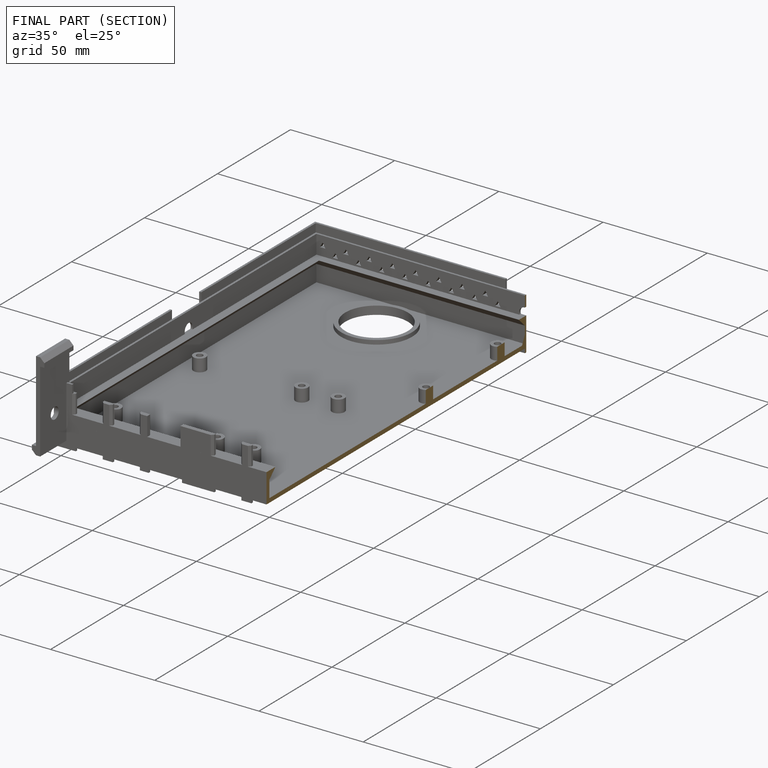
[diagram: finished part — half-section view (interior)]
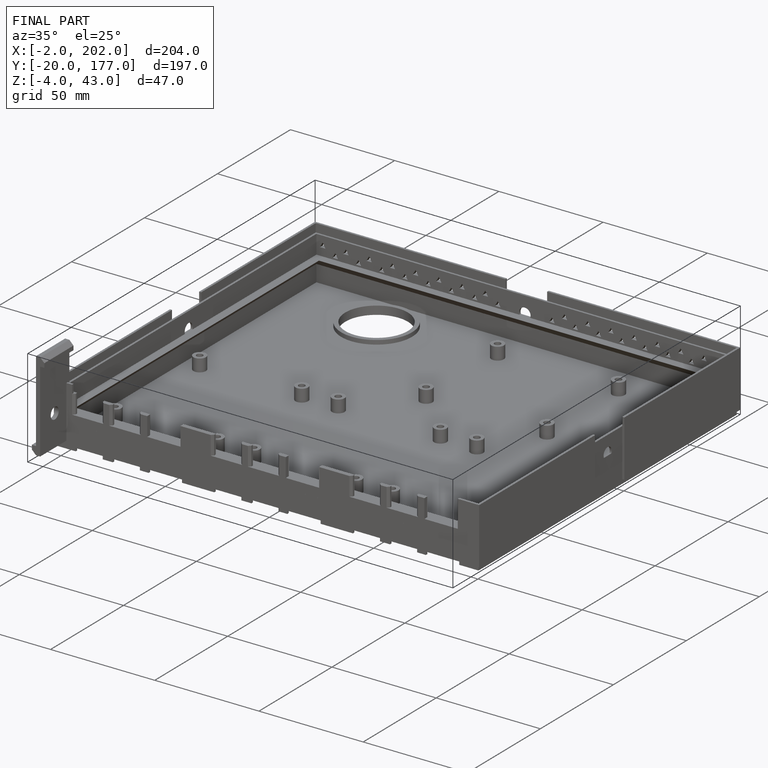
[diagram: finished part — iso view with bounding-box wireframe]
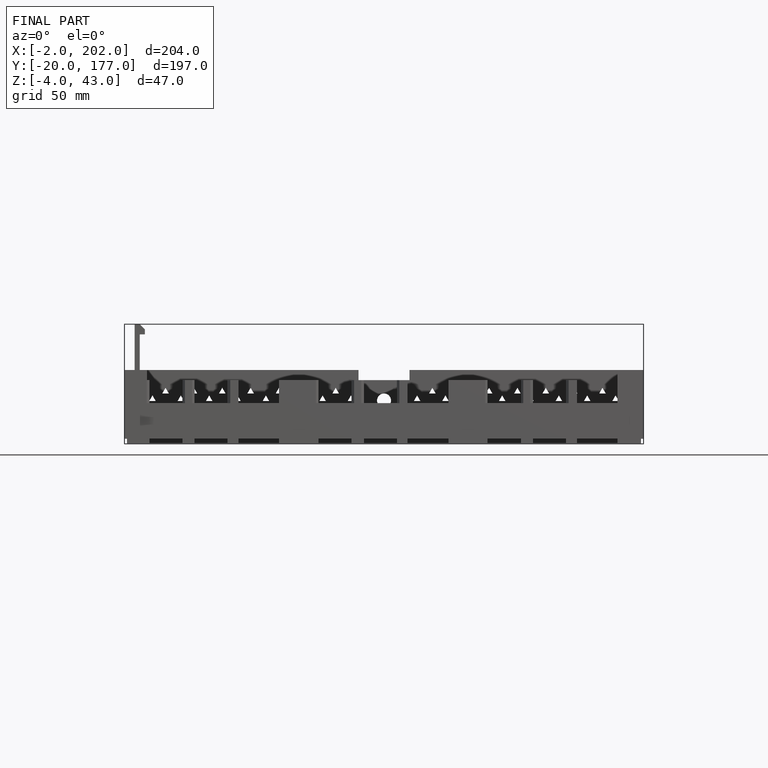
[diagram: finished part — front view with bounding-box wireframe]
